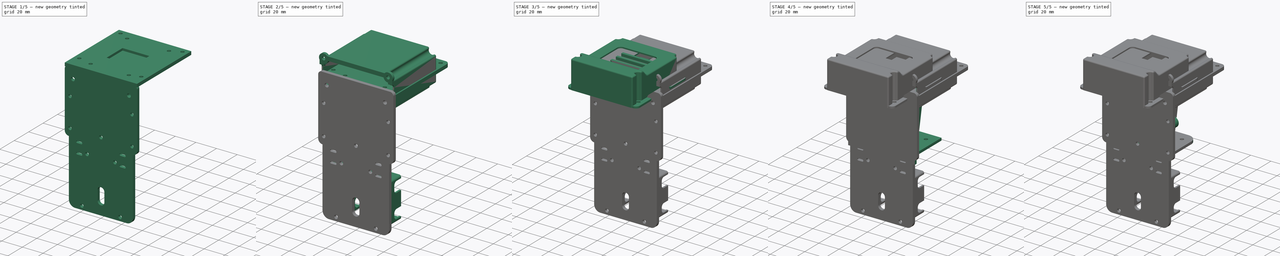
[diagram: build sequence overview — one tinted view per stage of 5, left to right]
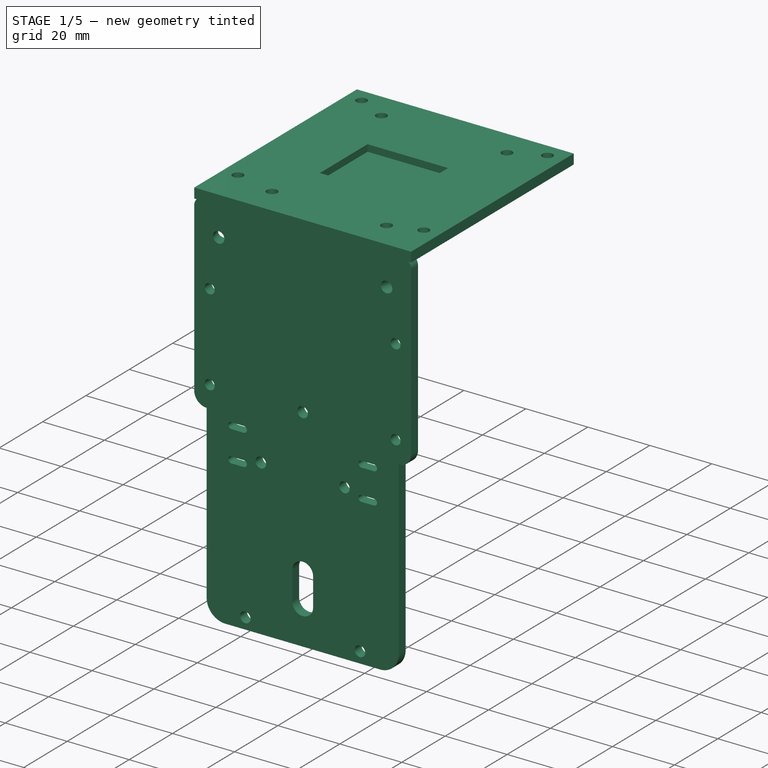
[diagram: stage 1 of 5 — iso view after this stage's code; geometry added in this stage tinted green]
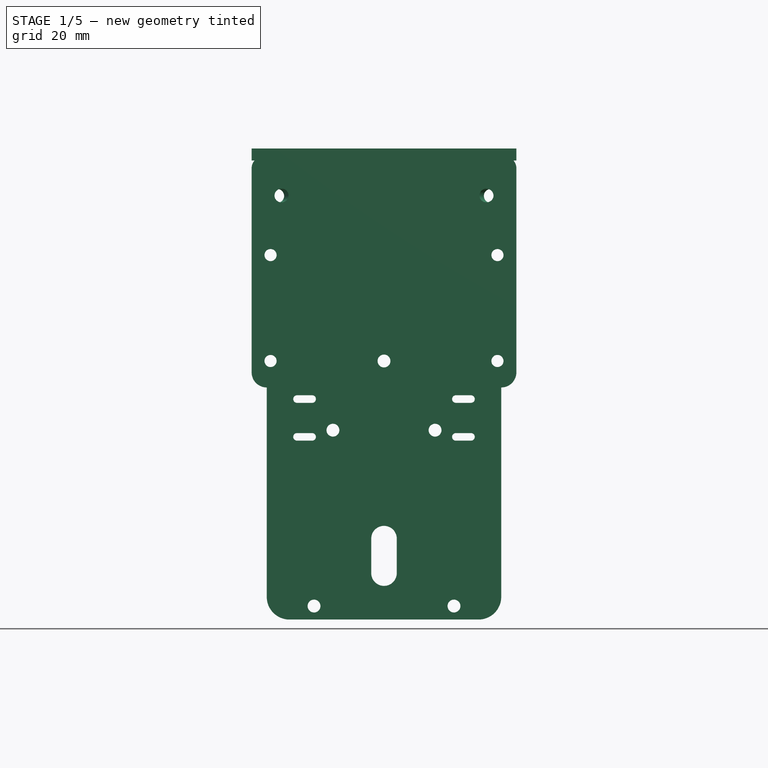
[diagram: stage 1 of 5 — front view after this stage's code; geometry added in this stage tinted green]
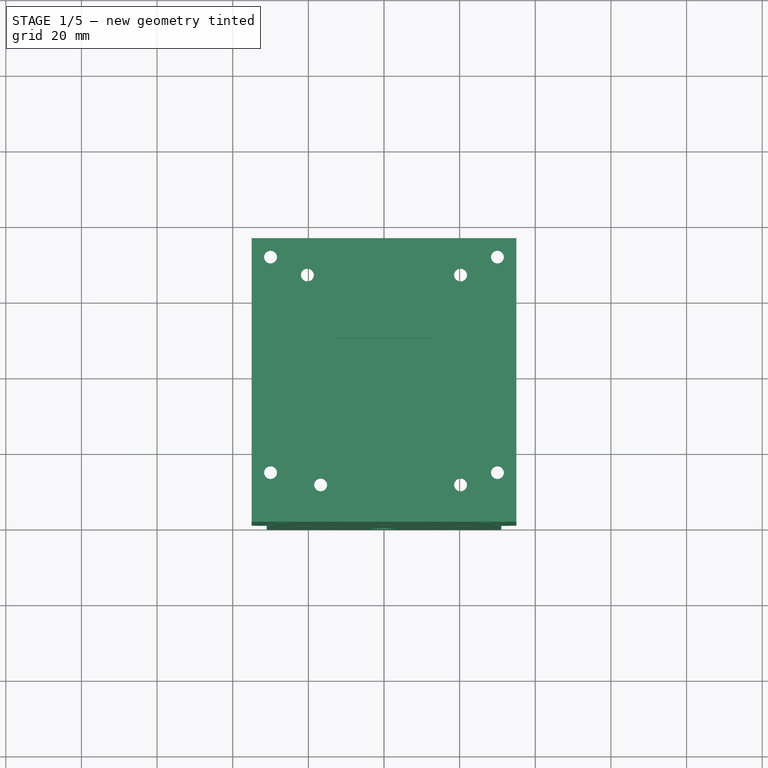
[diagram: stage 1 of 5 — top view after this stage's code; geometry added in this stage tinted green]
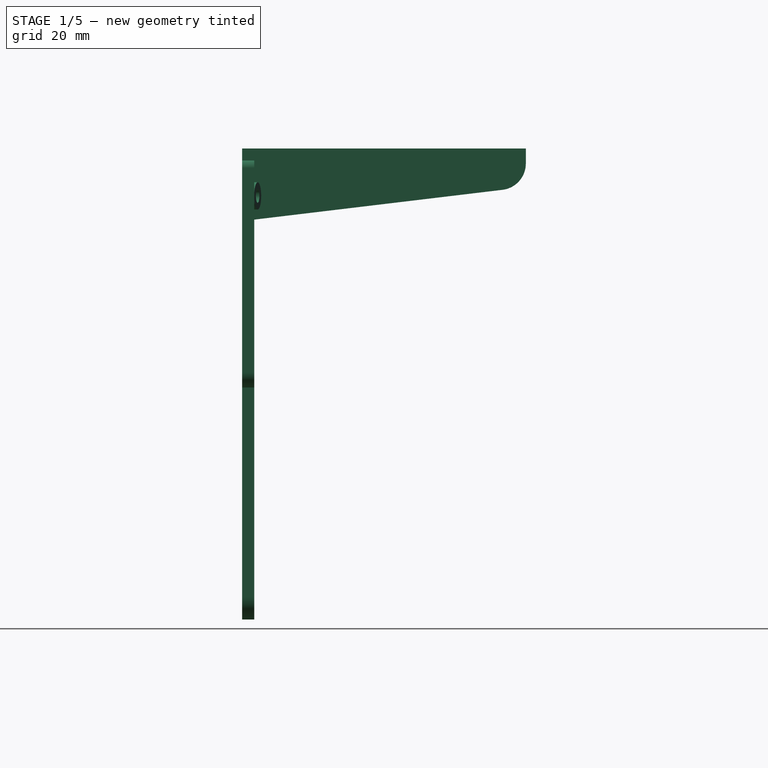
[diagram: stage 1 of 5 — right view after this stage's code; geometry added in this stage tinted green]
FCSTD DOCUMENT  (FreeCAD 0.19R24276 (Git))
Label: Fixation-pixhawk
License: All rights reserved
LicenseURL: http://en.wikipedia.org/wiki/All_rights_reserved
objects: Sketcher::SketchObject×62, PartDesign::Pocket×32, PartDesign::Pad×29, PartDesign::Fillet×17, PartDesign::Body×14, PartDesign::Mirrored×11, Part::Fuse×7, PartDesign::Chamfer×4, Part::FeaturePython×3, App::Part×3, PartDesign::Thickness×3, Part::Feature×2, Part::Mirroring×2, Spreadsheet::Sheet×2, PartDesign::LinearPattern×2
note: 273 computed .brp shape members not serialized (recipe doc carries the construction recipe); baked Part::Feature solids carry a one-line shape summary decoded from their .brp

FEATURE [PartDesign::Body] Body001  label="rondelle"
  Group = -> [Sketch009,Pad003,Sketch010,Pocket006]
  Origin = -> Origin001
  Placement = pos=(-27.5,0,10) rot=(0,0,1;0.261799rad)
  Tip = -> Pocket006
FEATURE [Sketcher::SketchObject] Sketch012
  AttachmentOffset = pos=(0,0,0) rot=(0,1,0;0.261799rad)
  FullyConstrained = true
  MapMode = 5
  Placement = pos=(0,0,0) rot=(0.983106,0.129428,0.129428;1.58783rad)
  Support = -> [XZ_Plane002]
  sketch-geometry (2):
    g0: Circle CenterX=0 CenterY=0 CenterZ=0 NormalX=0 NormalY=0 NormalZ=1 AngleXU=0 Radius=1.8
    g1: Circle CenterX=0 CenterY=0 CenterZ=0 NormalX=0 NormalY=0 NormalZ=1 AngleXU=0 Radius=3.6
  constraints (4):
    c: Coincident(g0,g-1)
    c: Coincident(g1,g0)
    c: Diameter(g0) = 3.6
    c: Diameter(g1) = 7.2
FEATURE [PartDesign::Pad] Pad004
  Direction = (1,1,1)
  Length = 3
  Length2 = 100
  Placement = pos=(0,0,0) rot=(1,0,0;1.5708rad)
  Profile = -> Sketch012
  Refine = true
  Reversed = true
  Type = 0
FEATURE [PartDesign::Body] Body002  label="petite_rondelle"
  Group = -> [Sketch012,Pad004]
  Origin = -> Origin002
  Placement = pos=(-27.375,1.2,-9.35) rot=(0,0,1;0rad)
  Tip = -> Pad004
FEATURE [Part::FeaturePython] Clone  label="petite_rondelle001"  # Draft clone (typed FeaturePython)
  AttacherType = Attacher::AttachEngine3D
  Fuse = false
  Objects = -> [Body002]
  Placement = pos=(-27.375,1.8,-9.35) rot=(0,0,1;0rad)
  Scale = (1,1,1)
FEATURE [Part::Mirroring] Part__Mirroring  label="petite_rondelle001 (Mirror #1)"
  Base = (0,0,0)
  Normal = (1,0,0)
  Placement = pos=(0,-0.6,0) rot=(0,0,1;0rad)
  Source = -> Clone
FEATURE [App::Part] Part001  label="Support-ESC"
  Group = -> [Part__Feature001,Body004,Body003,Clone001,Part__Mirroring001,Fusion001,Fusion002]
  Origin = -> Origin004
FEATURE [Spreadsheet::Sheet] Spreadsheet001  label="data1"
  cells = A2=Platine pixhawk; A3=Largeur; B3=70; D3=Hauteur pixhawk + spacer; E3==24.65 + 4; A4=Longueur; B4=75; D4=côté pixhawk; E4=38.3; A5=Jeu caisse pixhawk; B5=4; D5=Epaisseur coque protec; E5=1.27; A6=Main platine; A7=epaisseur pad; B7=3.2; A8=Largeur; B8=70; B11=Largeur; C11=Longueur; D11=Epaisseur; A12=TBS fpv; B12=26; C12=55; D12=6; A13=Telem; B13=21; C13=45; D13=8; A14=BEC; B14=16; C14=50; D14=10; A15=Rail connecteur; B15=7; C15=50; D15=15
FEATURE [Sketcher::SketchObject] Sketch030
  FullyConstrained = true
  MapMode = 5
  Support = -> [XY_Plane009]
  expr: Constraints[8] = <<data1>>.B3
  expr: Constraints[10] = <<data1>>.B4
  sketch-geometry (4):
    g0: LineSegment StartX=-35 StartY=0 StartZ=0 EndX=35 EndY=0 EndZ=0
    g1: LineSegment StartX=35 StartY=0 StartZ=0 EndX=35 EndY=75 EndZ=0
    g2: LineSegment StartX=35 StartY=75 StartZ=0 EndX=-35 EndY=75 EndZ=0
    g3: LineSegment StartX=-35 StartY=75 StartZ=0 EndX=-35 EndY=0 EndZ=0
  constraints (11):
    c: Coincident(g0,g1)
    c: Coincident(g1,g2)
    c: Coincident(g2,g3)
    c: Coincident(g3,g0)
    c: Horizontal(g0)
    c: Vertical(g1)
    c: Vertical(g3)
    c: PointOnObject(g0,g-1)
    c: DistanceX(g0,g0) = 70
    c: Symmetric(g2,g1,g-2)
    c: DistanceY(g3,g3) = 75
FEATURE [PartDesign::Pad] Pad013
  Direction = (1,1,1)
  Length = 3.2
  Length2 = 100
  Profile = -> Sketch030
  Refine = true
  Type = 0
  expr: Length = <<data1>>.B7
FEATURE [Sketcher::SketchObject] Sketch031
  FullyConstrained = true
  MapMode = 5
  Support = -> [XY_Plane009]
  expr: Constraints[20] = 55.5 / 2 - 22 / 2
  expr: Constraints[23] = <<data1>>.B4 / 2
  sketch-geometry (13):
    g0: Circle CenterX=-20.25 CenterY=65.25 CenterZ=0 NormalX=0 NormalY=0 NormalZ=1 AngleXU=0 Radius=1.7
    g1: Circle CenterX=20.25 CenterY=65.25 CenterZ=0 NormalX=0 NormalY=0 NormalZ=1 AngleXU=0 Radius=1.7
    g2: Circle CenterX=-16.75 CenterY=9.75 CenterZ=0 NormalX=0 NormalY=0 NormalZ=1 AngleXU=0 Radius=1.7
    g3: Circle CenterX=20.25 CenterY=9.75 CenterZ=0 NormalX=0 NormalY=0 NormalZ=1 AngleXU=0 Radius=1.7
    g4: LineSegment StartX=-13 StartY=48.5 StartZ=0 EndX=13 EndY=48.5 EndZ=0
    g5: LineSegment StartX=13 StartY=48.5 StartZ=0 EndX=13 EndY=26.5 EndZ=0
    g6: LineSegment StartX=13 StartY=26.5 StartZ=0 EndX=-13 EndY=26.5 EndZ=0
    g7: LineSegment StartX=-13 StartY=26.5 StartZ=0 EndX=-13 EndY=48.5 EndZ=0
    g8: GeomPoint X=-13 Y=37.5 Z=0
    g9: Circle CenterX=-30 CenterY=70 CenterZ=0 NormalX=0 NormalY=0 NormalZ=1 AngleXU=0 Radius=1.7
    g10: Circle CenterX=30 CenterY=70 CenterZ=0 NormalX=0 NormalY=0 NormalZ=1 AngleXU=0 Radius=1.7
    g11: Circle CenterX=-30 CenterY=13 CenterZ=0 NormalX=0 NormalY=0 NormalZ=1 AngleXU=0 Radius=1.7
    g12: Circle CenterX=30 CenterY=13 CenterZ=0 NormalX=0 NormalY=0 NormalZ=1 AngleXU=0 Radius=1.7
  constraints (34):
    c: Symmetric(g0,g1,g-2)
    c: Equal(g0,g2)
    c: Equal(g2,g3)
    c: Equal(g3,g1)
    c: Diameter(g0) = 3.4
    c: DistanceY(g2,g0) = 55.5
    c: DistanceX(g2,g3) = 37
    c: DistanceX(g0,g1) = 40.5
    c: DistanceY(g3,g2) = 0
    c: DistanceX(g3,g1) = 0
    c: Coincident(g4,g5)
    c: Coincident(g5,g6)
    c: Coincident(g6,g7)
    c: Coincident(g7,g4)
    c: Horizontal(g6)
    c: Vertical(g5)
    c: Vertical(g7)
    c: DistanceX(g4,g4) = 26
    c: DistanceY(g5,g5) = 22
    c: Symmetric(g4,g4,g-2)
    c: DistanceY(g2,g6) = 16.75
    c: PointOnObject(g8,g7)
    c: DistanceY(g6,g8) = 11
    c: DistanceY(g8) = 37.5
    c: Equal(g9,g11)
    c: Equal(g11,g12)
    c: Equal(g12,g10)
    c: Diameter(g11) = 3.4
    c: Symmetric(g9,g10,g-2)
    c: Symmetric(g11,g12,g-2)
    c: DistanceY(g11) = 13
    c: DistanceX(g11) = -30
    c: DistanceX(g9) = -30
    c: DistanceY(g9) = 70
FEATURE [Sketcher::SketchObject] Sketch032
  AttachmentOffset = pos=(0,0,9.8) rot=(0,0,1;0rad)
  FullyConstrained = false
  MapMode = 5
  Placement = pos=(9.8,-2.2e-15,2.2e-15) rot=(0.57735,0.57735,0.57735;2.0944rad)
  Support = -> [YZ_Plane009]
  expr: Constraints[0] = <<data1>>.B4
  sketch-geometry (5):
    g0: GeomPoint X=75 Y=-7 Z=0
    g1: LineSegment StartX=0 StartY=0 StartZ=0 EndX=75 EndY=0 EndZ=0
    g2: LineSegment StartX=0 StartY=0 StartZ=0 EndX=0 EndY=-16 EndZ=0
    g3: LineSegment StartX=0 StartY=-16 StartZ=0 EndX=75 EndY=-7 EndZ=0
    g4: LineSegment StartX=75 StartY=0 StartZ=0 EndX=75 EndY=-7 EndZ=0
  constraints (10):
    c: DistanceX(g0) = 75
    c: PointOnObject(g2,g-2)
    c: Coincident(g3,g2)
    c: DistanceY(g2,g2) = 16
    c: Tangent(g1,g-1) = -1.5708
    c: Coincident(g4,g1)
    c: Vertical(g4)
    c: Coincident(g3,g4)
    c: Coincident(g0,g3)
    c: DistanceY(g4,g4) = 7
FEATURE [PartDesign::Pocket] Pocket020
  BaseFeature = -> Pad013
  Length = 1
  Length2 = 100
  Profile = -> Sketch031
  Refine = true
  Reversed = true
  Type = 4
FEATURE [PartDesign::Body] Body008  label="telem-rx"
  Group = -> [Sketch050,Pad022]
  Origin = -> Origin012
  Placement = pos=(-22,0,-38) rot=(0,1,0;1.5708rad)
  Tip = -> Pad022
FEATURE [Sketcher::SketchObject] Sketch052
  AttachmentOffset = pos=(0,-53,0) rot=(0,0,1;0rad)
  FullyConstrained = true
  MapMode = 5
  Placement = pos=(0,1.18e-14,-53) rot=(1,0,0;1.5708rad)
  Support = -> [XZ_Plane013]
  sketch-geometry (1):
    g0: Circle CenterX=0 CenterY=0 CenterZ=0 NormalX=0 NormalY=0 NormalZ=1 AngleXU=0 Radius=1.7
  constraints (2):
    c: Coincident(g0,g-1)
    c: Diameter(g0) = 3.4
FEATURE [Sketcher::SketchObject] Sketch062
  FullyConstrained = true
  MapMode = 5
  Support = -> [XY_Plane013]
  expr: Constraints[8] = <<data1>>.B8
  expr: Constraints[9] = <<data1>>.B7
  sketch-geometry (4):
    g0: LineSegment StartX=-35 StartY=0 StartZ=0 EndX=35 EndY=0 EndZ=0
    g1: LineSegment StartX=35 StartY=0 StartZ=0 EndX=35 EndY=3.2 EndZ=0
    g2: LineSegment StartX=35 StartY=3.2 StartZ=0 EndX=-35 EndY=3.2 EndZ=0
    g3: LineSegment StartX=-35 StartY=3.2 StartZ=0 EndX=-35 EndY=0 EndZ=0
  constraints (11):
    c: Coincident(g0,g1)
    c: Coincident(g1,g2)
    c: Coincident(g2,g3)
    c: Coincident(g3,g0)
    c: Horizontal(g2)
    c: Vertical(g1)
    c: Vertical(g3)
    c: PointOnObject(g0,g-1)
    c: DistanceX(g2,g2) = 70
    c: DistanceY(g1,g1) = 3.2
    c: Symmetric(g0,g0,g-2)
FEATURE [PartDesign::Pad] Pad027
  Direction = (1,1,1)
  Length = 1
  Length2 = 60
  Profile = -> Sketch062
  Refine = true
  Reversed = true
  Type = 4
FEATURE [Sketcher::SketchObject] Sketch065
  AttachmentOffset = pos=(-25.1,-9,8) rot=(0,0.707107,0.707107;0.349066rad)
  FullyConstrained = true
  MapMode = 5
  Placement = pos=(-25.1,-8,-9) rot=(0.970288,0,0.241955;1.60095rad)
  Support = -> [XZ_Plane013]
  sketch-geometry (1):
    g0: Circle CenterX=0 CenterY=0 CenterZ=0 NormalX=0 NormalY=0 NormalZ=1 AngleXU=0 Radius=1.8
  constraints (2):
    c: Diameter(g0) = 3.6
    c: Coincident(g0,g-1)
FEATURE [PartDesign::Pocket] Pocket022
  BaseFeature = -> Pad027
  Length = 5
  Length2 = 100
  Profile = -> Sketch065
  Refine = true
  Type = 1
FEATURE [PartDesign::Mirrored] Mirrored011
  BaseFeature = -> Pocket022
  MirrorPlane = -> YZ_Plane013
  Originals = -> [Pocket022]
  Refine = true
FEATURE [PartDesign::Pocket] Pocket023
  BaseFeature = -> Mirrored011
  Length = 5
  Length2 = 100
  Profile = -> Sketch052
  Refine = true
  Type = 1
FEATURE [PartDesign::Body] Body010  label="BEC"
  Group = -> [Sketch066,Pad028]
  Origin = -> Origin014
  Placement = pos=(-25,15,-48) rot=(0,0,-1;1.5708rad)
  Tip = -> Pad028
FEATURE [Sketcher::SketchObject] Sketch067
  FullyConstrained = true
  MapMode = 5
  Support = -> [XY_Plane009]
  expr: Constraints[12] = <<data1>>.B4 / 2
  sketch-geometry (5):
    g0: LineSegment StartX=-15 StartY=50.5 StartZ=0 EndX=15 EndY=50.5 EndZ=0
    g1: LineSegment StartX=15 StartY=50.5 StartZ=0 EndX=15 EndY=24.5 EndZ=0
    g2: LineSegment StartX=15 StartY=24.5 StartZ=0 EndX=-15 EndY=24.5 EndZ=0
    g3: LineSegment StartX=-15 StartY=24.5 StartZ=0 EndX=-15 EndY=50.5 EndZ=0
    g4: GeomPoint X=-15 Y=37.5 Z=0
  constraints (13):
    c: Coincident(g0,g1)
    c: Coincident(g1,g2)
    c: Coincident(g2,g3)
    c: Coincident(g3,g0)
    c: Horizontal(g2)
    c: Vertical(g1)
    c: Vertical(g3)
    c: DistanceX(g0,g0) = 30
    c: DistanceY(g1,g1) = 26
    c: Symmetric(g0,g0,g-2)
    c: PointOnObject(g4,g3)
    c: DistanceY(g2,g4) = 13
    c: DistanceY(g4) = 37.5
FEATURE [Sketcher::SketchObject] Sketch068
  FullyConstrained = true
  MapMode = 5
  Placement = pos=(0,0,0) rot=(1,0,0;1.5708rad)
  Support = -> [XZ_Plane013]
  sketch-geometry (4):
    g0: Circle CenterX=-30 CenterY=-25 CenterZ=0 NormalX=0 NormalY=0 NormalZ=1 AngleXU=0 Radius=1.6
    g1: Circle CenterX=30 CenterY=-25 CenterZ=0 NormalX=0 NormalY=0 NormalZ=1 AngleXU=0 Radius=1.6
    g2: Circle CenterX=-30 CenterY=-53 CenterZ=0 NormalX=0 NormalY=0 NormalZ=1 AngleXU=0 Radius=1.6
    g3: Circle CenterX=30 CenterY=-53 CenterZ=0 NormalX=0 NormalY=0 NormalZ=1 AngleXU=0 Radius=1.6
  constraints (10):
    c: Equal(g2,g0)
    c: Equal(g0,g1)
    c: Equal(g1,g3)
    c: Symmetric(g0,g1,g-2)
    c: Symmetric(g2,g3,g-2)
    c: DistanceX(g0) = -30
    c: Diameter(g0) = 3.2
    c: DistanceX(g2,g0) = 0
    c: DistanceY(g2) = -53
    c: DistanceY(g2,g0) = 28
FEATURE [PartDesign::Pocket] Pocket024
  BaseFeature = -> Pocket023
  Length = 5
  Length2 = 100
  Profile = -> Sketch068
  Refine = true
  Type = 0
FEATURE [PartDesign::Fillet] Fillet010
  Base = -> Pocket024 [Edge15,Edge13]
  BaseFeature = -> Pocket024
  Radius = 4
  Refine = true
  SupportTransform = false
FEATURE [PartDesign::Pad] Pad029
  BaseFeature = -> Pocket020
  Direction = (1,1,1)
  Length = 3.5
  Length2 = 100
  Profile = -> Sketch032
  Refine = true
  Type = 0
FEATURE [PartDesign::Mirrored] Mirrored012
  BaseFeature = -> Pad029
  MirrorPlane = -> YZ_Plane009
  Originals = -> [Pad029]
  Refine = true
FEATURE [PartDesign::Pad] Pad030
  BaseFeature = -> Mirrored012
  Direction = (1,1,1)
  Length = 1
  Length2 = 1.6
  Profile = -> Sketch067
  Refine = true
  Type = 4
FEATURE [Part::Fuse] Fusion003  label="Fusion005"
  Base = -> Body002
  Refine = true
  Tool = -> Part__Mirroring
FEATURE [PartDesign::Fillet] Fillet013
  Base = -> Pad030 [Edge8,Edge12]
  BaseFeature = -> Pad030
  Radius = 7
  Refine = true
  SupportTransform = false
FEATURE [PartDesign::Body] Body013  label="Boite-Radio"
  Group = -> [Sketch080,Sketch081,Pad036,Sketch082,Pocket030,Thickness001,Sketch083,Pad037,Sketch084,Pad038,Pocket031,Sketch086,Pocket032,Sketch087,Pocket033,Sketch088,Pad039,Sketch089,Pocket034,Chamfer004]
  Origin = -> Origin017
  Placement = pos=(0,3,-37.5) rot=(0,0,1;0rad)
  Tip = -> Chamfer004
  expr: .Placement.Base.z = -15.5 - 22
FEATURE [Sketcher::SketchObject] Sketch094
  FullyConstrained = false
  MapMode = 5
  Placement = pos=(0,0,0) rot=(1,0,0;1.5708rad)
  Support = -> [XZ_Plane013]
  sketch-geometry (8):
    g0: Circle CenterX=-13.5 CenterY=-71.2972 CenterZ=0 NormalX=0 NormalY=0 NormalZ=1 AngleXU=0 Radius=1.7
    g1: Circle CenterX=-18.5 CenterY=-117.797 CenterZ=0 NormalX=0 NormalY=0 NormalZ=1 AngleXU=0 Radius=1.7
    g2: Circle CenterX=18.5 CenterY=-117.797 CenterZ=0 NormalX=0 NormalY=0 NormalZ=1 AngleXU=0 Radius=1.7
    g3: Circle CenterX=13.5 CenterY=-71.2972 CenterZ=0 NormalX=0 NormalY=0 NormalZ=1 AngleXU=0 Radius=1.7
    g4: ArcOfCircle CenterX=0 CenterY=-99.9666 CenterZ=0 NormalX=0 NormalY=0 NormalZ=1 AngleXU=0 Radius=3.37465 StartAngle=-1.8e-15 EndAngle=3.14159
    g5: ArcOfCircle CenterX=-2e-16 CenterY=-109.091 CenterZ=0 NormalX=0 NormalY=0 NormalZ=1 AngleXU=0 Radius=3.37465 StartAngle=3.14159 EndAngle=6.28319
    g6: LineSegment StartX=-3.37465 StartY=-99.9666 StartZ=0 EndX=-3.37465 EndY=-109.091 EndZ=0
    g7: LineSegment StartX=3.37465 StartY=-99.9666 StartZ=0 EndX=3.37465 EndY=-109.091 EndZ=0
  constraints (16):
    c: Diameter(g0) = 3.4
    c: Diameter(g1) = 3.4
    c: DistanceX(g1) = -18.5
    c: Equal(g2,g1)
    c: Symmetric(g2,g1,g-2)
    c: DistanceX(g0) = -13.5
    c: DistanceY(g1,g0) = 46.5
    c: Equal(g3,g0)
    c: Symmetric(g0,g3,g-2)
    c: Tangent(g4,g7) = 1.5708
    c: Tangent(g4,g6) = -1.5708
    c: Tangent(g6,g5) = -1.5708
    c: Tangent(g7,g5) = 1.5708
    c: Vertical(g6)
    c: Equal(g4,g5)
    c: PointOnObject(g4,g-2)
FEATURE [PartDesign::Fillet] Fillet012
  Base = -> Fillet010 [Edge19,Edge16]
  BaseFeature = -> Fillet010
  Radius = 3
  Refine = true
  SupportTransform = false
FEATURE [Sketcher::SketchObject] Sketch073
  ExternalGeometry = -> [Fillet012]
  FullyConstrained = false
  MapMode = 5
  Placement = pos=(0,0,0) rot=(1,0,0;1.5708rad)
  Support = -> [XZ_Plane013]
  sketch-geometry (12):
    g0: LineSegment StartX=-31 StartY=-60 StartZ=0 EndX=0 EndY=-60 EndZ=0
    g1: LineSegment StartX=0 StartY=-60 StartZ=0 EndX=0 EndY=-121.367 EndZ=0
    g2: LineSegment StartX=0 StartY=-121.367 StartZ=0 EndX=-31 EndY=-121.367 EndZ=0
    g3: LineSegment StartX=-31 StartY=-121.367 StartZ=0 EndX=-31 EndY=-60 EndZ=0
    g4: ArcOfCircle CenterX=-23 CenterY=-63.0636 CenterZ=0 NormalX=0 NormalY=0 NormalZ=1 AngleXU=0 Radius=1 StartAngle=1.5708 EndAngle=4.71239
    g5: ArcOfCircle CenterX=-19 CenterY=-63.0636 CenterZ=0 NormalX=0 NormalY=0 NormalZ=1 AngleXU=0 Radius=1 StartAngle=4.71239 EndAngle=7.85398
    g6: LineSegment StartX=-23 StartY=-64.0636 StartZ=0 EndX=-19 EndY=-64.0636 EndZ=0
    g7: LineSegment StartX=-23 StartY=-62.0636 StartZ=0 EndX=-19 EndY=-62.0636 EndZ=0
    g8: ArcOfCircle CenterX=-23 CenterY=-73.0636 CenterZ=0 NormalX=0 NormalY=0 NormalZ=1 AngleXU=0 Radius=1 StartAngle=1.5708 EndAngle=4.71239
    g9: ArcOfCircle CenterX=-19 CenterY=-73.0636 CenterZ=0 NormalX=0 NormalY=0 NormalZ=1 AngleXU=0 Radius=1 StartAngle=4.71239 EndAngle=7.85398
    g10: LineSegment StartX=-23 StartY=-74.0636 StartZ=0 EndX=-19 EndY=-74.0636 EndZ=0
    g11: LineSegment StartX=-23 StartY=-72.0636 StartZ=0 EndX=-19 EndY=-72.0636 EndZ=0
  constraints (28):
    c: Coincident(g0,g1)
    c: Coincident(g1,g2)
    c: Coincident(g2,g3)
    c: Horizontal(g2)
    c: Vertical(g3)
    c: Tangent(g4,g7) = 1.5708
    c: Tangent(g4,g6) = -1.5708
    c: Tangent(g6,g5) = -1.5708
    c: Tangent(g7,g5) = 1.5708
    c: Horizontal(g6)
    c: Equal(g4,g5)
    c: Tangent(g-2,g1)
    c: Perpendicular(g-2,g0)
    c: DistanceX(g4,g5) = 4
    c: DistanceY(g4,g4) = 2
    c: Tangent(g8,g11) = 1.5708
    c: Tangent(g8,g10) = -1.5708
    c: Tangent(g10,g9) = -1.5708
    c: Tangent(g11,g9) = 1.5708
    c: Horizontal(g10)
    c: Equal(g8,g9)
    c: Equal(g11,g6)
    c: Equal(g8,g4)
    c: DistanceX(g4,g8) = 0
    c: DistanceY(g9,g5) = 8
    c: DistanceX(g0,g4) = 8
    c: Coincident(g0,g3)
    c: Coincident(g0,g-3)
FEATURE [PartDesign::Pad] Pad032
  BaseFeature = -> Fillet012
  Direction = (1,1,1)
  Length = 3.2
  Length2 = 100
  Profile = -> Sketch073
  Refine = true
  Reversed = true
  Type = 0
  expr: Length = <<data1>>.B7
FEATURE [PartDesign::Mirrored] Mirrored013
  BaseFeature = -> Pad032
  MirrorPlane = -> Sketch073 [V_Axis]
  Originals = -> [Pad032]
  Refine = true
FEATURE [PartDesign::Pocket] Pocket037
  BaseFeature = -> Mirrored013
  Length = 5
  Length2 = 100
  Profile = -> Sketch094
  Refine = true
  Type = 1
FEATURE [PartDesign::Fillet] Fillet021
  Base = -> Pocket037 [Edge91,Edge92]
  BaseFeature = -> Pocket037
  Radius = 6
  Refine = true
  SupportTransform = false
FEATURE [PartDesign::Body] Body009  label="platine"
  Group = -> [Sketch062,Pad027,Sketch065,Sketch052,Pocket022,Mirrored011,Pocket023,Sketch068,Pocket024,Fillet010,Fillet012,Sketch073,Pad032,Mirrored013,Sketch094,Pocket037,Fillet021]
  Origin = -> Origin013
  Tip = -> Fillet021
FEATURE [Part::Fuse] Fusion
  Base = -> Body009
  Refine = true
  Tool = -> Fusion003
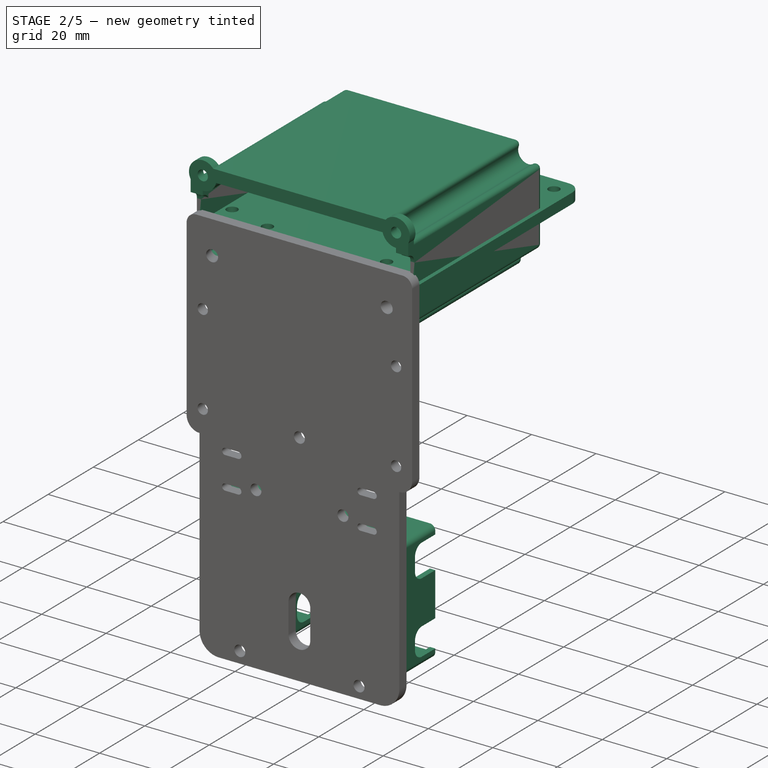
[diagram: stage 2 of 5 — iso view after this stage's code; geometry added in this stage tinted green]
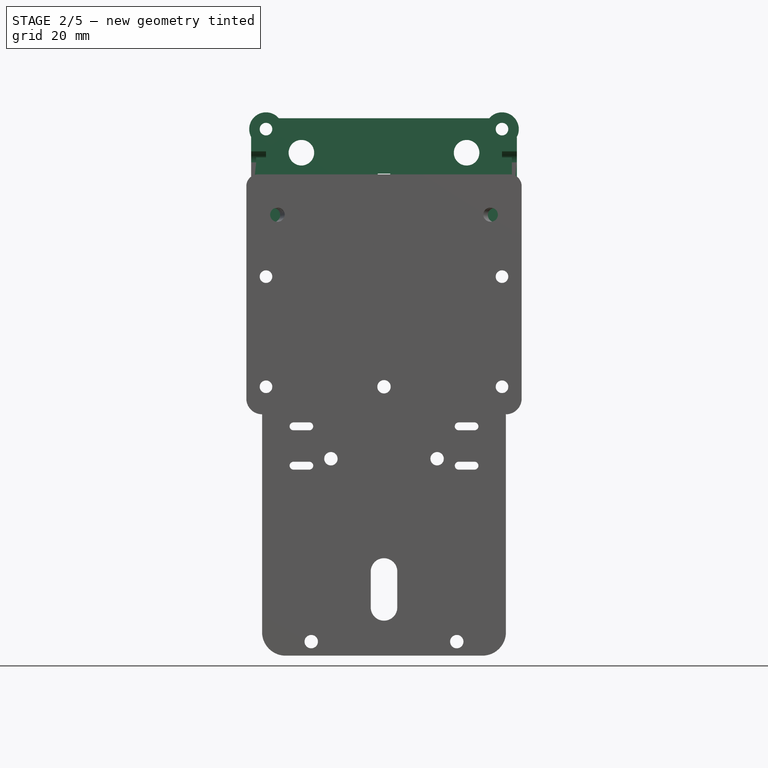
[diagram: stage 2 of 5 — front view after this stage's code; geometry added in this stage tinted green]
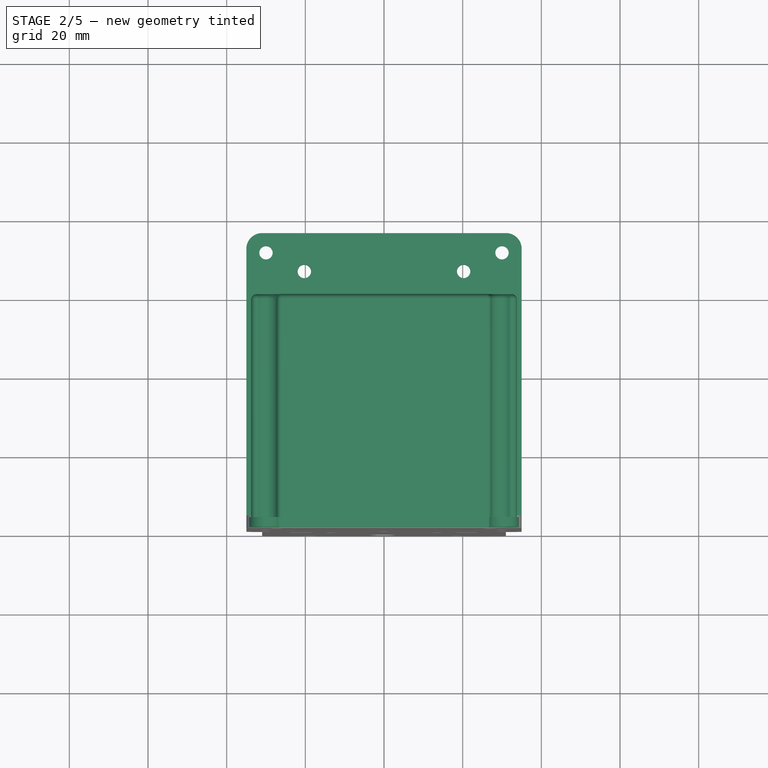
[diagram: stage 2 of 5 — top view after this stage's code; geometry added in this stage tinted green]
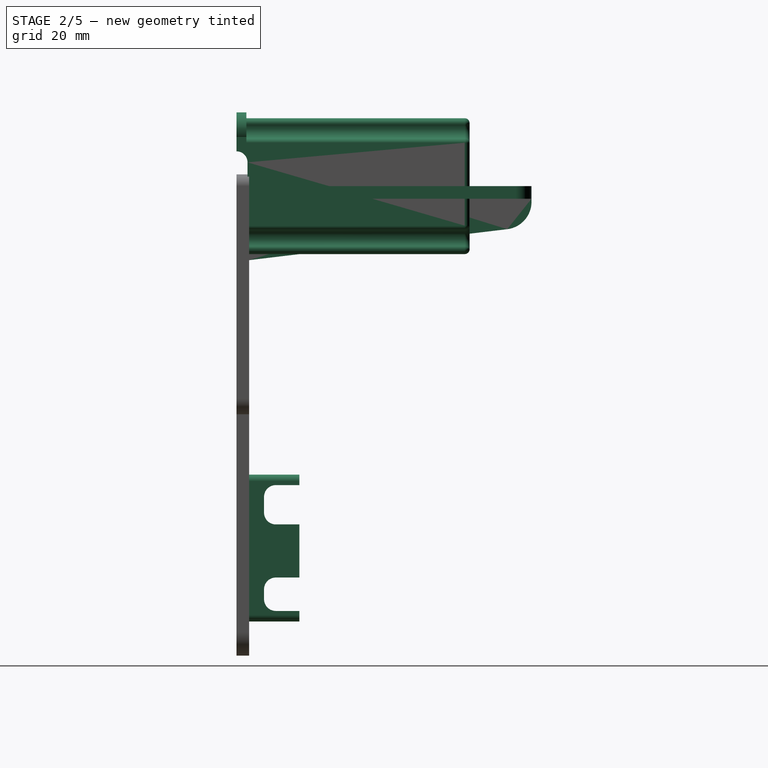
[diagram: stage 2 of 5 — right view after this stage's code; geometry added in this stage tinted green]
FEATURE [PartDesign::Chamfer] Chamfer
  Angle = 45
  Base = -> Fillet013 [Edge96,Edge86,Edge88,Edge97,Edge110,Edge114]
  BaseFeature = -> Fillet013
  ChamferType = 0
  FlipDirection = false
  Refine = true
  Size = 1.5
  Size2 = 1
  SupportTransform = false
FEATURE [PartDesign::Chamfer] Chamfer001
  Angle = 45
  Base = -> Chamfer [Edge104,Edge102,Edge103,Edge101]
  BaseFeature = -> Chamfer
  ChamferType = 0
  FlipDirection = false
  Refine = true
  Size = 2
  Size2 = 1
  SupportTransform = false
FEATURE [PartDesign::Fillet] Fillet014
  Base = -> Chamfer001 [Edge38,Edge36]
  BaseFeature = -> Chamfer001
  Radius = 4
  Refine = true
  SupportTransform = false
FEATURE [PartDesign::Body] Body012  label="Boite-Pixhawk"
  Group = -> [Sketch070,Sketch071,Sketch072,Sketch074,Pad033,Sketch075,Pocket025,Sketch076,Fillet018,Pocket026,Thickness,Pocket027,Sketch077,Pad034,Sketch078,Pad035,Pocket028,Sketch079,Pocket029,Fillet019]
  Origin = -> Origin016
  Placement = pos=(0,37.5,0) rot=(0,0,1;0rad)
  Tip = -> Fillet019
  expr: .Placement.Base.y = <<data1>>.B4 / 2
FEATURE [Sketcher::SketchObject] Sketch080
  FullyConstrained = true
  MapMode = 5
  Placement = pos=(0,0,0) rot=(1,0,0;1.5708rad)
  Support = -> [XZ_Plane017]
  sketch-geometry (5):
    g0: Circle CenterX=-30 CenterY=12.5 CenterZ=0 NormalX=0 NormalY=0 NormalZ=1 AngleXU=0 Radius=1.6
    g1: Circle CenterX=30 CenterY=12.5 CenterZ=0 NormalX=0 NormalY=0 NormalZ=1 AngleXU=0 Radius=1.6
    g2: Circle CenterX=-30 CenterY=-15.5 CenterZ=0 NormalX=0 NormalY=0 NormalZ=1 AngleXU=0 Radius=1.6
    g3: Circle CenterX=30 CenterY=-15.5 CenterZ=0 NormalX=0 NormalY=0 NormalZ=1 AngleXU=0 Radius=1.6
    g4: Circle CenterX=0 CenterY=-15.5 CenterZ=0 NormalX=0 NormalY=0 NormalZ=1 AngleXU=0 Radius=1.6
  constraints (13):
    c: Equal(g2,g0)
    c: Equal(g0,g1)
    c: Equal(g1,g3)
    c: Symmetric(g0,g1,g-2)
    c: Symmetric(g2,g3,g-2)
    c: DistanceX(g0) = -30
    c: Diameter(g0) = 3.2
    c: PointOnObject(g4,g-2)
    c: Equal(g4,g0)
    c: DistanceY(g4,g2) = 0
    c: DistanceY(g2) = -15.5
    c: DistanceX(g0,g2) = 0
    c: DistanceY(g0) = 12.5
FEATURE [Sketcher::SketchObject] Sketch081
  FullyConstrained = true
  MapMode = 5
  Placement = pos=(0,0,0) rot=(1,0,0;1.5708rad)
  Support = -> [XZ_Plane017]
  sketch-geometry (4):
    g0: LineSegment StartX=-32.5 StartY=-18 StartZ=0 EndX=32.5 EndY=-18 EndZ=0
    g1: LineSegment StartX=32.5 StartY=-18 StartZ=0 EndX=32.5 EndY=14 EndZ=0
    g2: LineSegment StartX=32.5 StartY=14 StartZ=0 EndX=-32.5 EndY=14 EndZ=0
    g3: LineSegment StartX=-32.5 StartY=14 StartZ=0 EndX=-32.5 EndY=-18 EndZ=0
  constraints (11):
    c: Coincident(g0,g1)
    c: Coincident(g1,g2)
    c: Coincident(g2,g3)
    c: Coincident(g3,g0)
    c: Horizontal(g0)
    c: Vertical(g1)
    c: Symmetric(g2,g1,g-2)
    c: DistanceX(g2,g2) = 65
    c: DistanceY(g2) = 14
    c: Perpendicular(g0,g3)
    c: DistanceY(g0) = -18
FEATURE [PartDesign::Pad] Pad036
  Direction = (1,1,1)
  Length = 58
  Length2 = 100
  Placement = pos=(0,0,0) rot=(1,0,0;1.5708rad)
  Profile = -> Sketch081
  Refine = true
  Reversed = true
  Type = 0
FEATURE [Sketcher::SketchObject] Sketch082
  FullyConstrained = true
  MapMode = 5
  Placement = pos=(0,0,0) rot=(1,0,0;1.5708rad)
  Support = -> [XZ_Plane017]
  expr: Constraints[6] = 6 + 2 * <<data1>>.E5
  sketch-geometry (5):
    g0: Circle CenterX=-30 CenterY=12.5 CenterZ=0 NormalX=0 NormalY=0 NormalZ=1 AngleXU=0 Radius=4.27
    g1: Circle CenterX=30 CenterY=12.5 CenterZ=0 NormalX=0 NormalY=0 NormalZ=1 AngleXU=0 Radius=4.27
    g2: Circle CenterX=-30 CenterY=-15.5 CenterZ=0 NormalX=0 NormalY=0 NormalZ=1 AngleXU=0 Radius=4.27
    g3: Circle CenterX=30 CenterY=-15.5 CenterZ=0 NormalX=0 NormalY=0 NormalZ=1 AngleXU=0 Radius=4.27
    g4: Circle CenterX=0 CenterY=-15.5 CenterZ=0 NormalX=0 NormalY=0 NormalZ=1 AngleXU=0 Radius=4.27
  constraints (13):
    c: Equal(g2,g0)
    c: Equal(g0,g1)
    c: Equal(g1,g3)
    c: Symmetric(g0,g1,g-2)
    c: Symmetric(g2,g3,g-2)
    c: DistanceX(g0) = -30
    c: Diameter(g0) = 8.54
    c: PointOnObject(g4,g-2)
    c: Equal(g4,g0)
    c: DistanceY(g4,g2) = 0
    c: DistanceY(g2) = -15.5
    c: DistanceX(g0,g2) = 0
    c: DistanceY(g-1,g0) = 12.5
FEATURE [PartDesign::Pocket] Pocket030
  BaseFeature = -> Pad036
  Length = 5
  Length2 = 100
  Placement = pos=(0,0,0) rot=(1,0,0;1.5708rad)
  Profile = -> Sketch082
  Refine = true
  Type = 1
FEATURE [PartDesign::Thickness] Thickness001
  Base = -> Pocket030 [Face2]
  BaseFeature = -> Pocket030
  Intersection = false
  Join = 0
  Mode = 0
  Refine = true
  SupportTransform = false
  Value = 1.27
  expr: Value = <<data1>>.E5
FEATURE [Sketcher::SketchObject] Sketch083
  FullyConstrained = false
  MapMode = 5
  Placement = pos=(0,0,0) rot=(1,0,0;1.5708rad)
  Support = -> [XZ_Plane017]
  expr: Constraints[19] = -18 - <<data1>>.E5
  expr: Constraints[10] = 14 - 2.5
  expr: Constraints[20] = 14 + <<data1>>.E5
  expr: Constraints[16] = 65 + 2 * <<data1>>.E5
  expr: Constraints[11] = -18 + 2.5
  expr: Constraints[7] = 65 - 2 * 2.5
  sketch-geometry (13):
    g0: LineSegment StartX=-30 StartY=-15.5 StartZ=0 EndX=30 EndY=-15.5 EndZ=0
    g1: LineSegment StartX=30 StartY=-15.5 StartZ=0 EndX=30 EndY=11.5 EndZ=0
    g2: LineSegment StartX=30 StartY=11.5 StartZ=0 EndX=-30 EndY=11.5 EndZ=0
    g3: LineSegment StartX=-30 StartY=11.5 StartZ=0 EndX=-30 EndY=-15.5 EndZ=0
    g4: LineSegment StartX=-28.77 StartY=15.27 StartZ=0 EndX=28.77 EndY=15.27 EndZ=0
    g5: LineSegment StartX=33.77 StartY=10.27 StartZ=0 EndX=33.77 EndY=-14.27 EndZ=0
    g6: LineSegment StartX=28.77 StartY=-19.27 StartZ=0 EndX=-28.77 EndY=-19.27 EndZ=0
    g7: LineSegment StartX=-33.77 StartY=-14.27 StartZ=0 EndX=-33.77 EndY=10.27 EndZ=0
    g8: ArcOfCircle CenterX=28.77 CenterY=-14.27 CenterZ=0 NormalX=0 NormalY=0 NormalZ=1 AngleXU=0 Radius=5 StartAngle=4.71239 EndAngle=6.28319
    g9: GeomPoint X=-33.77 Y=-10.0718 Z=0
    g10: ArcOfCircle CenterX=28.77 CenterY=10.27 CenterZ=0 NormalX=0 NormalY=0 NormalZ=1 AngleXU=0 Radius=5 StartAngle=0 EndAngle=1.5708
    g11: ArcOfCircle CenterX=-28.77 CenterY=10.27 CenterZ=0 NormalX=0 NormalY=0 NormalZ=1 AngleXU=0 Radius=5 StartAngle=1.5708 EndAngle=3.14159
    g12: ArcOfCircle CenterX=-28.77 CenterY=-14.27 CenterZ=0 NormalX=0 NormalY=0 NormalZ=1 AngleXU=0 Radius=5 StartAngle=3.14159 EndAngle=4.71239
  constraints (31):
    c: Coincident(g0,g1)
    c: Coincident(g1,g2)
    c: Coincident(g2,g3)
    c: Coincident(g3,g0)
    c: Horizontal(g0)
    c: Vertical(g1)
    c: Symmetric(g2,g1,g-2)
    c: DistanceX(g2,g2) = 60
    c: Horizontal(g6)
    c: Vertical(g5)
    c: DistanceY(g2) = 11.5
    c: DistanceY(g0) = -15.5
    c: Perpendicular(g0,g3)
    c: Tangent(g5,g8) = 1.5708
    c: Tangent(g6,g8) = 1.5708
    c: PointOnObject(g9,g7)
    c: DistanceX(g9,g5) = 67.54
    c: Tangent(g4,g10) = 1.5708
    c: Tangent(g5,g10) = 1.5708
    c: DistanceY(g6) = -19.27
    c: DistanceY(g4) = 15.27
    c: Tangent(g4,g11) = 1.5708
    c: Tangent(g7,g11) = 1.5708
    c: Tangent(g6,g12) = 1.5708
    c: Tangent(g7,g12) = 1.5708
    c: Equal(g12,g11)
    c: Equal(g11,g10)
    c: Equal(g10,g8)
    c: Parallel(g7,g-2)
    c: Symmetric(g7,g5,g-2)
    c: Radius(g11) = 5
FEATURE [PartDesign::Pad] Pad037
  BaseFeature = -> Thickness001
  Direction = (1,1,1)
  Length = 2.5
  Length2 = 100
  Profile = -> Sketch083
  Refine = true
  Reversed = true
  Type = 0
FEATURE [Sketcher::SketchObject] Sketch084
  FullyConstrained = true
  MapMode = 5
  Placement = pos=(0,0,0) rot=(1,0,0;1.5708rad)
  Support = -> [XZ_Plane017]
  expr: Constraints[6] = 6 + 2 * <<data1>>.E5
  sketch-geometry (5):
    g0: Circle CenterX=-30 CenterY=12.5 CenterZ=0 NormalX=0 NormalY=0 NormalZ=1 AngleXU=0 Radius=4.27
    g1: Circle CenterX=30 CenterY=12.5 CenterZ=0 NormalX=0 NormalY=0 NormalZ=1 AngleXU=0 Radius=4.27
    g2: Circle CenterX=-30 CenterY=-15.5 CenterZ=0 NormalX=0 NormalY=0 NormalZ=1 AngleXU=0 Radius=4.27
    g3: Circle CenterX=30 CenterY=-15.5 CenterZ=0 NormalX=0 NormalY=0 NormalZ=1 AngleXU=0 Radius=4.27
    g4: Circle CenterX=0 CenterY=-15.5 CenterZ=0 NormalX=0 NormalY=0 NormalZ=1 AngleXU=0 Radius=4.27
  constraints (13):
    c: Equal(g2,g0)
    c: Equal(g0,g1)
    c: Equal(g1,g3)
    c: Symmetric(g0,g1,g-2)
    c: Symmetric(g2,g3,g-2)
    c: DistanceX(g0) = -30
    c: Diameter(g0) = 8.54
    c: PointOnObject(g4,g-2)
    c: Equal(g4,g0)
    c: DistanceY(g4,g2) = 0
    c: DistanceY(g2) = -15.5
    c: DistanceX(g0,g2) = 0
    c: DistanceY(g0) = 12.5
FEATURE [PartDesign::Pad] Pad038
  BaseFeature = -> Pad037
  Direction = (1,1,1)
  Length = 2.5
  Length2 = 100
  Profile = -> Sketch084
  Refine = true
  Reversed = true
  Type = 0
FEATURE [PartDesign::Pocket] Pocket031
  BaseFeature = -> Pad038
  Length = 5
  Length2 = 100
  Profile = -> Sketch080
  Refine = true
  Type = 1
FEATURE [Sketcher::SketchObject] Sketch086
  FullyConstrained = false
  MapMode = 5
  Placement = pos=(0,0,0) rot=(0.57735,0.57735,0.57735;2.0944rad)
  Support = -> [YZ_Plane017]
  sketch-geometry (4):
    g0: ArcOfCircle CenterX=0 CenterY=4.05212 CenterZ=0 NormalX=0 NormalY=0 NormalZ=1 AngleXU=0 Radius=2.8 StartAngle=2e-16 EndAngle=3.14159
    g1: ArcOfCircle CenterX=0 CenterY=-7.94788 CenterZ=0 NormalX=0 NormalY=0 NormalZ=1 AngleXU=0 Radius=2.8 StartAngle=3.14159 EndAngle=6.28319
    g2: LineSegment StartX=-2.8 StartY=4.05212 StartZ=0 EndX=-2.8 EndY=-7.94788 EndZ=0
    g3: LineSegment StartX=2.8 StartY=4.05212 StartZ=0 EndX=2.8 EndY=-7.94788 EndZ=0
  constraints (9):
    c: Tangent(g0,g3) = 1.5708
    c: Tangent(g0,g2) = -1.5708
    c: Tangent(g2,g1) = -1.5708
    c: Tangent(g3,g1) = 1.5708
    c: Vertical(g2)
    c: PointOnObject(g0,g-2)
    c: DistanceX(g0,g0) = 2.8
    c: DistanceY(g1,g0) = 12
    c: PointOnObject(g1,g-2)
FEATURE [PartDesign::Pocket] Pocket032
  BaseFeature = -> Pocket031
  Length = 5
  Length2 = 100
  Midplane = true
  Profile = -> Sketch086
  Refine = true
  Reversed = true
  Type = 1
FEATURE [Sketcher::SketchObject] Sketch087
  FullyConstrained = false
  MapMode = 5
  Placement = pos=(0,0,0) rot=(1,0,0;1.5708rad)
  Support = -> [XZ_Plane017]
  sketch-geometry (6):
    g0: Circle CenterX=-21 CenterY=6.5 CenterZ=0 NormalX=0 NormalY=0 NormalZ=1 AngleXU=0 Radius=3.25
    g1: Circle CenterX=21 CenterY=6.5 CenterZ=0 NormalX=0 NormalY=0 NormalZ=1 AngleXU=0 Radius=3.25
    g2: LineSegment StartX=-1.6 StartY=1.17364 StartZ=0 EndX=1.6 EndY=1.17364 EndZ=0
    g3: LineSegment StartX=1.6 StartY=1.17364 StartZ=0 EndX=1.6 EndY=-1.22636 EndZ=0
    g4: LineSegment StartX=1.6 StartY=-1.22636 StartZ=0 EndX=-1.6 EndY=-1.22636 EndZ=0
    g5: LineSegment StartX=-1.6 StartY=-1.22636 StartZ=0 EndX=-1.6 EndY=1.17364 EndZ=0
  constraints (15):
    c: Diameter(g0) = 6.5
    c: DistanceY(g0) = 6.5
    c: DistanceX(g0) = -21
    c: Symmetric(g1,g0,g-2)
    c: Equal(g1,g0)
    c: Coincident(g2,g3)
    c: Coincident(g3,g4)
    c: Coincident(g4,g5)
    c: Coincident(g5,g2)
    c: Horizontal(g4)
    c: Vertical(g3)
    c: Vertical(g5)
    c: DistanceY(g5,g5) = 2.4
    c: DistanceX(g2,g2) = 3.2
    c: Symmetric(g2,g2,g-2)
FEATURE [PartDesign::Pocket] Pocket033
  BaseFeature = -> Pocket032
  Length = 5
  Length2 = 100
  Profile = -> Sketch087
  Refine = true
  Type = 1
FEATURE [Sketcher::SketchObject] Sketch090
  FullyConstrained = true
  MapMode = 5
  Placement = pos=(0,0,0) rot=(1,0,0;1.5708rad)
  Support = -> [XZ_Plane018]
  sketch-geometry (4):
    g0: LineSegment StartX=-11 StartY=0 StartZ=0 EndX=11 EndY=0 EndZ=0
    g1: LineSegment StartX=11 StartY=0 StartZ=0 EndX=11 EndY=34 EndZ=0
    g2: LineSegment StartX=11 StartY=34 StartZ=0 EndX=-11 EndY=34 EndZ=0
    g3: LineSegment StartX=-11 StartY=34 StartZ=0 EndX=-11 EndY=0 EndZ=0
  constraints (11):
    c: Coincident(g0,g1)
    c: Coincident(g1,g2)
    c: Coincident(g2,g3)
    c: Coincident(g3,g0)
    c: Horizontal(g0)
    c: Vertical(g1)
    c: Vertical(g3)
    c: PointOnObject(g0,g-1)
    c: DistanceY(g3,g3) = 34
    c: DistanceX(g2,g2) = 22
    c: Symmetric(g2,g1,g-2)
FEATURE [PartDesign::Pad] Pad040
  Direction = (1,1,1)
  Length = 13
  Length2 = 100
  Placement = pos=(0,0,0) rot=(1,0,0;1.5708rad)
  Profile = -> Sketch090
  Refine = true
  Type = 0
FEATURE [PartDesign::Thickness] Thickness002
  Base = -> Pad040 [Face5]
  BaseFeature = -> Pad040
  Intersection = false
  Join = 0
  Mode = 0
  Refine = true
  SupportTransform = false
  Value = 1.67
FEATURE [Sketcher::SketchObject] Sketch091
  FullyConstrained = false
  MapMode = 5
  Placement = pos=(0,0,0) rot=(1,0,0;1.5708rad)
  Support = -> [XZ_Plane018]
  sketch-geometry (4):
    g0: LineSegment StartX=-17.9563 StartY=11 StartZ=0 EndX=20.3649 EndY=11 EndZ=0
    g1: LineSegment StartX=20.3649 StartY=11 StartZ=0 EndX=20.3649 EndY=1 EndZ=0
    g2: LineSegment StartX=20.3649 StartY=1 StartZ=0 EndX=-17.9563 EndY=1 EndZ=0
    g3: LineSegment StartX=-17.9563 StartY=1 StartZ=0 EndX=-17.9563 EndY=11 EndZ=0
  constraints (10):
    c: Coincident(g0,g1)
    c: Coincident(g1,g2)
    c: Coincident(g2,g3)
    c: Coincident(g3,g0)
    c: Horizontal(g0)
    c: Horizontal(g2)
    c: Vertical(g1)
    c: Vertical(g3)
    c: DistanceY(g3,g3) = 10
    c: DistanceY(g2) = 1
FEATURE [PartDesign::Pocket] Pocket035
  BaseFeature = -> Thickness002
  Length = 9
  Length2 = 100
  Profile = -> Sketch091
  Refine = true
  Reversed = true
  Type = 0
FEATURE [Sketcher::SketchObject] Sketch092
  FullyConstrained = false
  MapMode = 5
  Placement = pos=(0,0,0) rot=(1,0,0;1.5708rad)
  Support = -> [XZ_Plane018]
  sketch-geometry (8):
    g0: LineSegment StartX=15.2523 StartY=20.9983 StartZ=0 EndX=8.05438 EndY=20.9983 EndZ=0
    g1: LineSegment StartX=8.05438 StartY=20.9983 StartZ=0 EndX=8.05438 EndY=32.9983 EndZ=0
    g2: LineSegment StartX=8.05438 StartY=32.9983 StartZ=0 EndX=15.2523 EndY=32.9983 EndZ=0
    g3: LineSegment StartX=15.2523 StartY=32.9983 StartZ=0 EndX=15.2523 EndY=20.9983 EndZ=0
    g4: LineSegment StartX=-14.8213 StartY=32.9983 StartZ=0 EndX=-10.7007 EndY=32.9983 EndZ=0
    g5: LineSegment StartX=-10.7007 StartY=32.9983 StartZ=0 EndX=-10.7007 EndY=24.4983 EndZ=0
    g6: LineSegment StartX=-10.7007 StartY=24.4983 StartZ=0 EndX=-14.8213 EndY=24.4983 EndZ=0
    g7: LineSegment StartX=-14.8213 StartY=24.4983 StartZ=0 EndX=-14.8213 EndY=32.9983 EndZ=0
  constraints (19):
    c: Coincident(g0,g1)
    c: Coincident(g1,g2)
    c: Coincident(g2,g3)
    c: Coincident(g3,g0)
    c: Horizontal(g0)
    c: Horizontal(g2)
    c: Vertical(g1)
    c: Vertical(g3)
    c: DistanceY(g3,g3) = 12
    c: Coincident(g4,g5)
    c: Coincident(g5,g6)
    c: Coincident(g6,g7)
    c: Coincident(g7,g4)
    c: Horizontal(g4)
    c: Horizontal(g6)
    c: Vertical(g5)
    c: Vertical(g7)
    c: DistanceY(g7,g7) = 8.5
    c: DistanceY(g4,g2) = 0
FEATURE [PartDesign::Pocket] Pocket036
  BaseFeature = -> Pocket035
  Length = 9
  Length2 = 100
  Profile = -> Sketch092
  Refine = true
  Reversed = true
  Type = 0
FEATURE [PartDesign::Fillet] Fillet020
  Base = -> Pocket036 [Edge46,Edge43,Edge54,Edge51,Edge56,Edge59,Edge64,Edge67]
  BaseFeature = -> Pocket036
  Radius = 3
  Refine = true
  SupportTransform = false
FEATURE [Sketcher::SketchObject] Sketch093
  FullyConstrained = false
  MapMode = 5
  Placement = pos=(0,-13,2.9e-15) rot=(0,0.707107,0.707107;3.14159rad)
  Support = -> [Fillet020]
  sketch-geometry (1):
    g0: Circle CenterX=0 CenterY=16.1062 CenterZ=0 NormalX=0 NormalY=0 NormalZ=1 AngleXU=0 Radius=9.79347
  constraints (1):
    c: PointOnObject(g0,g-2)
FEATURE [PartDesign::Pad] Pad041
  BaseFeature = -> Fillet020
  Direction = (1,1,1)
  Length = 2.6
  Length2 = 100
  Profile = -> Sketch093
  Refine = true
  Type = 0
FEATURE [PartDesign::Chamfer] Chamfer003
  Angle = 45
  Base = -> Pad041 [Edge97]
  BaseFeature = -> Pad041
  ChamferType = 0
  FlipDirection = false
  Refine = true
  Size = 1
  Size2 = 1
  SupportTransform = false
FEATURE [Part::FeaturePython] Clone002  label="Support-Mauch001"  # Draft clone (typed FeaturePython)
  AttacherType = Attacher::AttachEngine3D
  Fuse = false
  Objects = -> [Body014]
  Placement = pos=(-18.3,16,-77) rot=(0,1,0;3.14159rad)
  Scale = (1,1,1)
FEATURE [Part::Fuse] Fusion004  label="Fusion006"
  Base = -> Body005
  Refine = true
  Tool = -> Fusion
FEATURE [Part::Fuse] Fusion005  label="Fusion007"
  Base = -> Body014
  Refine = true
  Tool = -> Fusion004
FEATURE [Part::Fuse] Fusion006  label="Platine-ready"
  Base = -> Clone002
  Refine = true
  Tool = -> Fusion005
FEATURE [App::Part] Part002  label="NEW-support-px"
  Group = -> [Spreadsheet001,Body007,Body008,Body010,Body002,Clone,Part__Mirroring,Body005,Body009,Fusion003,Body012,Body013,Body014,Clone002,Fusion,Fusion004,Fusion005,Fusion006]
  Origin = -> Origin008
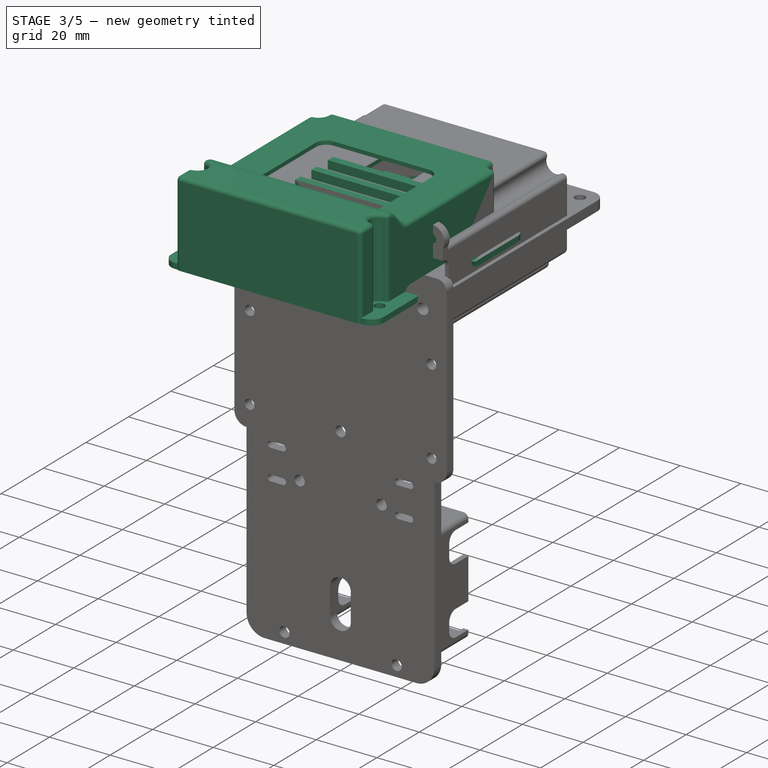
[diagram: stage 3 of 5 — iso view after this stage's code; geometry added in this stage tinted green]
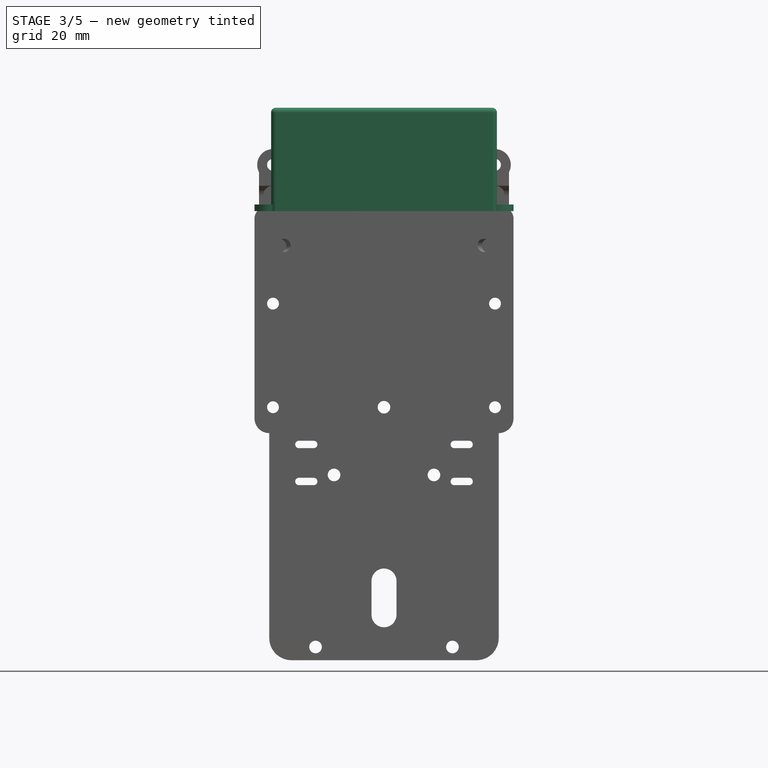
[diagram: stage 3 of 5 — front view after this stage's code; geometry added in this stage tinted green]
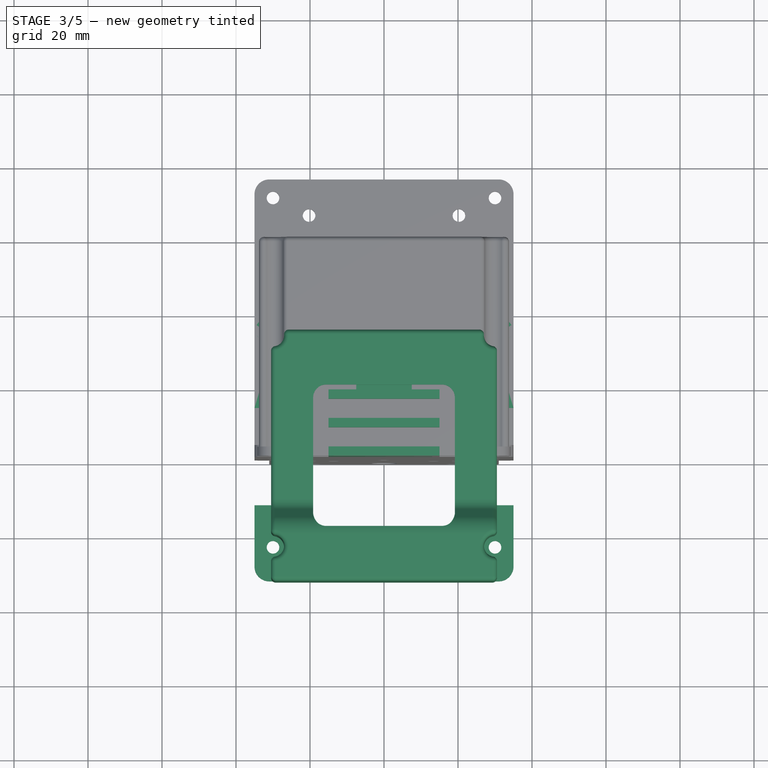
[diagram: stage 3 of 5 — top view after this stage's code; geometry added in this stage tinted green]
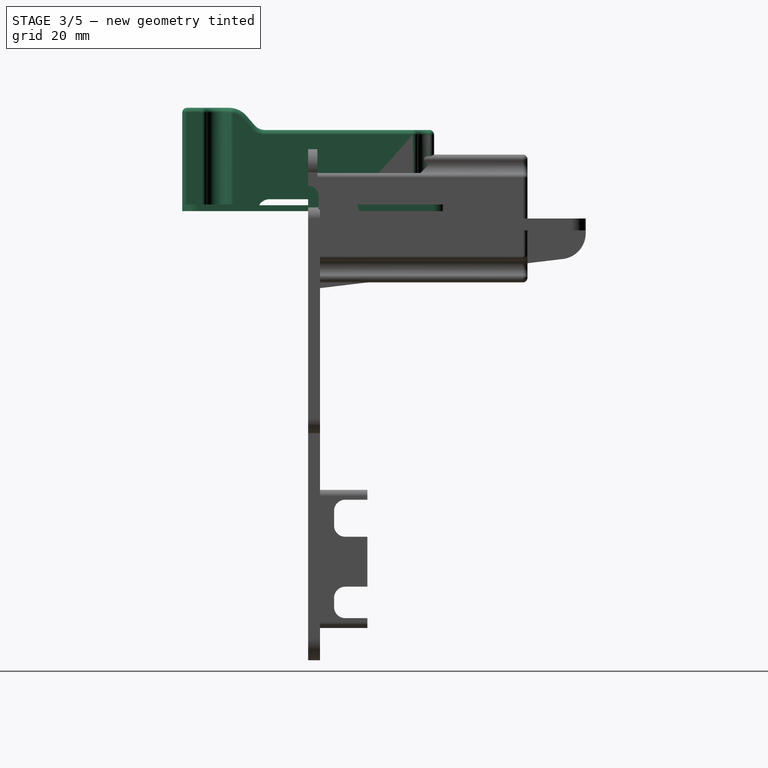
[diagram: stage 3 of 5 — right view after this stage's code; geometry added in this stage tinted green]
FEATURE [PartDesign::Body] Body
  Group = -> [Sketch,Pad,Sketch001,Sketch002,Sketch003,Sketch004,Sketch007,Pad005,Mirrored,Sketch013,Pocket,Mirrored001,Sketch014,Pad006,Pad007,Sketch015,Pocket007,Sketch016,Pad008,Pocket008,Sketch017,Sketch018,Pocket009,Sketch019,Pocket010,Mirrored002,LinearPattern,Pocket011,Mirrored003,Pocket012,Pocket013,Sketch020,Pocket014,Mirrored004,Fillet,Fillet001,Fillet002,Fillet003,Mirrored005,Sketch021,Pocket015,+1 more]
  Origin = -> Origin
  Tip = -> Mirrored006
FEATURE [App::Part] Part  label="OLD-support-px"
  Group = -> [Body,Body001,Part__Feature,Spreadsheet]
  Origin = -> Origin003
FEATURE [Part::Feature] Part__Feature001  label="Fusion003"
  Placement = pos=(-2.3e-14,-102,78) rot=(0,0,1;1.5708rad)
  shape: bbox 49.69 x 9.636 x 17.72 mm, 28 faces, 2 solids (baked)
FEATURE [Sketcher::SketchObject] Sketch024
  FullyConstrained = true
  MapMode = 5
  Support = -> [XY_Plane006]
  expr: Constraints[10] = <<data>>.B3 * 3 + 2 * 5.2
  sketch-geometry (4):
    g0: LineSegment StartX=-15 StartY=0 StartZ=0 EndX=15 EndY=0 EndZ=0
    g1: LineSegment StartX=15 StartY=0 StartZ=0 EndX=15 EndY=17.9 EndZ=0
    g2: LineSegment StartX=15 StartY=17.9 StartZ=0 EndX=-15 EndY=17.9 EndZ=0
    g3: LineSegment StartX=-15 StartY=17.9 StartZ=0 EndX=-15 EndY=0 EndZ=0
  constraints (11):
    c: Coincident(g0,g1)
    c: Coincident(g1,g2)
    c: Coincident(g2,g3)
    c: Coincident(g3,g0)
    c: Horizontal(g2)
    c: Vertical(g1)
    c: Vertical(g3)
    c: PointOnObject(g0,g-1)
    c: DistanceX(g2,g2) = 30
    c: Symmetric(g0,g0,g-2)
    c: DistanceY(g1,g1) = 17.9
FEATURE [PartDesign::Pad] Pad010
  Direction = (1,1,1)
  Length = 2.5
  Length2 = 100
  Profile = -> Sketch024
  Refine = true
  Reversed = true
  Type = 0
  expr: Length = <<data>>.B3
FEATURE [Sketcher::SketchObject] Sketch025
  FullyConstrained = true
  MapMode = 5
  Support = -> [XY_Plane006]
  expr: Constraints[8] = <<data>>.B3
  sketch-geometry (4):
    g0: LineSegment StartX=-15 StartY=0 StartZ=0 EndX=15 EndY=0 EndZ=0
    g1: LineSegment StartX=15 StartY=0 StartZ=0 EndX=15 EndY=2.5 EndZ=0
    g2: LineSegment StartX=15 StartY=2.5 StartZ=0 EndX=-15 EndY=2.5 EndZ=0
    g3: LineSegment StartX=-15 StartY=2.5 StartZ=0 EndX=-15 EndY=0 EndZ=0
  constraints (11):
    c: Coincident(g0,g1)
    c: Coincident(g1,g2)
    c: Coincident(g2,g3)
    c: Coincident(g3,g0)
    c: Horizontal(g0)
    c: Vertical(g1)
    c: Vertical(g3)
    c: PointOnObject(g0,g-1)
    c: DistanceY(g1,g1) = 2.5
    c: DistanceX(g2,g2) = 30
    c: Symmetric(g2,g1,g-2)
FEATURE [PartDesign::Pad] Pad011
  BaseFeature = -> Pad010
  Direction = (1,1,1)
  Length = 18
  Length2 = 100
  Profile = -> Sketch025
  Refine = true
  Type = 0
FEATURE [PartDesign::LinearPattern] LinearPattern001
  BaseFeature = -> Pad011
  Direction = -> Y_Axis006
  Length = 15.4
  Occurrences = 3
  Originals = -> [Pad011]
  Refine = true
  expr: Length = <<data>>.B3 * 2 + 2 * 5.2
FEATURE [Sketcher::SketchObject] Sketch049
  FullyConstrained = true
  MapMode = 5
  Support = -> [XY_Plane011]
  expr: Constraints[9] = <<data1>>.B12
  expr: Constraints[10] = <<data1>>.C12
  sketch-geometry (4):
    g0: LineSegment StartX=-13 StartY=0 StartZ=0 EndX=13 EndY=-1e-16 EndZ=0
    g1: LineSegment StartX=13 StartY=-1e-16 StartZ=0 EndX=13 EndY=55 EndZ=0
    g2: LineSegment StartX=13 StartY=55 StartZ=0 EndX=-13 EndY=55 EndZ=0
    g3: LineSegment StartX=-13 StartY=55 StartZ=0 EndX=-13 EndY=0 EndZ=0
  constraints (11):
    c: Coincident(g0,g1)
    c: Coincident(g1,g2)
    c: Coincident(g2,g3)
    c: Coincident(g3,g0)
    c: Horizontal(g2)
    c: Vertical(g1)
    c: Vertical(g3)
    c: PointOnObject(g0,g-1)
    c: Symmetric(g0,g0,g-2)
    c: DistanceX(g2,g2) = 26
    c: DistanceY(g3,g3) = 55
FEATURE [PartDesign::Pad] Pad021
  Direction = (1,1,1)
  Length = 6
  Length2 = 100
  Profile = -> Sketch049
  Refine = true
  Type = 0
  expr: Length = <<data1>>.D12
FEATURE [PartDesign::Body] Body007  label="FPV-tx"
  Group = -> [Sketch049,Pad021]
  Origin = -> Origin011
  Placement = pos=(11,0,-36) rot=(0,0,1;0rad)
  Tip = -> Pad021
FEATURE [Sketcher::SketchObject] Sketch050
  FullyConstrained = true
  MapMode = 5
  Support = -> [XY_Plane012]
  expr: Constraints[9] = <<data1>>.B13
  expr: Constraints[10] = <<data1>>.C13
  sketch-geometry (4):
    g0: LineSegment StartX=-10.5 StartY=0 StartZ=0 EndX=10.5 EndY=0 EndZ=0
    g1: LineSegment StartX=10.5 StartY=0 StartZ=0 EndX=10.5 EndY=45 EndZ=0
    g2: LineSegment StartX=10.5 StartY=45 StartZ=0 EndX=-10.5 EndY=45 EndZ=0
    g3: LineSegment StartX=-10.5 StartY=45 StartZ=0 EndX=-10.5 EndY=0 EndZ=0
  constraints (11):
    c: Coincident(g0,g1)
    c: Coincident(g1,g2)
    c: Coincident(g2,g3)
    c: Coincident(g3,g0)
    c: Horizontal(g0)
    c: Vertical(g1)
    c: Vertical(g3)
    c: PointOnObject(g0,g-1)
    c: Symmetric(g2,g1,g-2)
    c: DistanceX(g2,g2) = 21
    c: DistanceY(g3,g3) = 45
FEATURE [PartDesign::Pad] Pad022
  Direction = (1,1,1)
  Length = 8
  Length2 = 100
  Profile = -> Sketch050
  Refine = true
  Type = 0
  expr: Length = <<data1>>.D13
FEATURE [Sketcher::SketchObject] Sketch066
  FullyConstrained = true
  MapMode = 5
  Support = -> [XY_Plane014]
  expr: Constraints[9] = <<data1>>.B14
  expr: Constraints[10] = <<data1>>.C14
  sketch-geometry (4):
    g0: LineSegment StartX=-8 StartY=0 StartZ=0 EndX=8 EndY=0 EndZ=0
    g1: LineSegment StartX=8 StartY=0 StartZ=0 EndX=8 EndY=50 EndZ=0
    g2: LineSegment StartX=8 StartY=50 StartZ=0 EndX=-8 EndY=50 EndZ=0
    g3: LineSegment StartX=-8 StartY=50 StartZ=0 EndX=-8 EndY=0 EndZ=0
  constraints (11):
    c: Coincident(g0,g1)
    c: Coincident(g1,g2)
    c: Coincident(g2,g3)
    c: Coincident(g3,g0)
    c: Horizontal(g0)
    c: Vertical(g1)
    c: Vertical(g3)
    c: PointOnObject(g0,g-1)
    c: Symmetric(g2,g1,g-2)
    c: DistanceX(g2,g2) = 16
    c: DistanceY(g3,g3) = 50
FEATURE [PartDesign::Pad] Pad028
  Direction = (1,1,1)
  Length = 10
  Length2 = 100
  Profile = -> Sketch066
  Refine = true
  Type = 0
  expr: Length = <<data1>>.D14
FEATURE [PartDesign::Body] Body005  label="platine-pixhawk"
  Group = -> [Sketch030,Pad013,Sketch031,Sketch032,Pocket020,Sketch067,Pad029,Mirrored012,Pad030,Fillet013,Chamfer,Chamfer001,Fillet014]
  Origin = -> Origin009
  Placement = pos=(0,0,-5.2) rot=(0,0,1;0rad)
  Tip = -> Fillet014
FEATURE [Sketcher::SketchObject] Sketch069
  FullyConstrained = true
  MapMode = 5
  Support = -> [XY_Plane015]
  sketch-geometry (10):
    g0: LineSegment StartX=-19.2 StartY=19.2 StartZ=0 EndX=-19.2 EndY=-19.2 EndZ=0
    g1: LineSegment StartX=-19.2 StartY=-19.2 StartZ=0 EndX=19.2 EndY=-19.2 EndZ=0
    g2: LineSegment StartX=19.2 StartY=-19.2 StartZ=0 EndX=19.2 EndY=19.2 EndZ=0
    g3: LineSegment StartX=19.2 StartY=19.2 StartZ=0 EndX=-19.2 EndY=19.2 EndZ=0
    g4: Circle CenterX=0 CenterY=0 CenterZ=0 NormalX=0 NormalY=0 NormalZ=1 AngleXU=0 Radius=27.1529
    g5: LineSegment StartX=-25 StartY=25 StartZ=0 EndX=-25 EndY=-25 EndZ=0
    g6: LineSegment StartX=-25 StartY=-25 StartZ=0 EndX=25 EndY=-25 EndZ=0
    g7: LineSegment StartX=25 StartY=-25 StartZ=0 EndX=25 EndY=25 EndZ=0
    g8: LineSegment StartX=25 StartY=25 StartZ=0 EndX=-25 EndY=25 EndZ=0
    g9: Circle CenterX=0 CenterY=0 CenterZ=0 NormalX=0 NormalY=0 NormalZ=1 AngleXU=0 Radius=35.3553
  constraints (28):
    c: Coincident(g0,g1)
    c: Coincident(g1,g2)
    c: Coincident(g2,g3)
    c: Coincident(g3,g0)
    c: Equal(g0,g1)
    c: Equal(g0,g2)
    c: Equal(g0,g3)
    c: PointOnObject(g0,g4)
    c: PointOnObject(g1,g4)
    c: PointOnObject(g2,g4)
    c: PointOnObject(g3,g4)
    c: Coincident(g4,g-1)
    c: Coincident(g5,g6)
    c: Coincident(g6,g7)
    c: Coincident(g7,g8)
    c: Coincident(g8,g5)
    c: Equal(g5,g6)
    c: Equal(g5,g7)
    c: Equal(g5,g8)
    c: PointOnObject(g5,g9)
    c: PointOnObject(g6,g9)
    c: PointOnObject(g7,g9)
    c: PointOnObject(g8,g9)
    c: Coincident(g9,g-1)
    c: Parallel(g8,g-1)
    c: Parallel(g3,g-1)
    c: DistanceX(g3,g3) = 38.4
    c: DistanceX(g8,g8) = 50
FEATURE [PartDesign::Pad] Pad031
  Direction = (1,1,1)
  Length = 1.6
  Length2 = 100
  Profile = -> Sketch069
  Refine = true
  Type = 0
FEATURE [PartDesign::Fillet] Fillet015
  Base = -> Pad031 [Edge20,Edge17,Edge14,Edge13]
  BaseFeature = -> Pad031
  Radius = 4.5
  Refine = true
  SupportTransform = false
FEATURE [PartDesign::Body] Body011
  Group = -> [Sketch069,Pad031,Fillet015]
  Origin = -> Origin015
  Tip = -> Fillet015
FEATURE [Sketcher::SketchObject] Sketch070
  FullyConstrained = true
  MapMode = 5
  Support = -> [XY_Plane016]
  expr: Constraints[8] = 50.5
  expr: Constraints[9] = 57.5
  sketch-geometry (4):
    g0: LineSegment StartX=-25.25 StartY=28.75 StartZ=0 EndX=25.25 EndY=28.75 EndZ=0
    g1: LineSegment StartX=25.25 StartY=28.75 StartZ=0 EndX=25.25 EndY=-28.75 EndZ=0
    g2: LineSegment StartX=25.25 StartY=-28.75 StartZ=0 EndX=-25.25 EndY=-28.75 EndZ=0
    g3: LineSegment StartX=-25.25 StartY=-28.75 StartZ=0 EndX=-25.25 EndY=28.75 EndZ=0
  constraints (10):
    c: Coincident(g0,g1)
    c: Coincident(g1,g2)
    c: Coincident(g2,g3)
    c: Coincident(g3,g0)
    c: Horizontal(g2)
    c: Vertical(g1)
    c: Symmetric(g0,g0,g-2)
    c: Symmetric(g0,g2,g-1)
    c: DistanceX(g0,g0) = 50.5
    c: DistanceY(g3,g3) = 57.5
FEATURE [Sketcher::SketchObject] Sketch071
  FullyConstrained = true
  MapMode = 5
  Support = -> [XY_Plane016]
  expr: Constraints[14] = <<data1>>.E4
  expr: Constraints[15] = <<data1>>.E4
  sketch-geometry (8):
    g0: LineSegment StartX=-15.65 StartY=-19.15 StartZ=0 EndX=15.65 EndY=-19.15 EndZ=0
    g1: LineSegment StartX=19.15 StartY=-15.65 StartZ=0 EndX=19.15 EndY=15.65 EndZ=0
    g2: LineSegment StartX=15.65 StartY=19.15 StartZ=0 EndX=-15.65 EndY=19.15 EndZ=0
    g3: LineSegment StartX=-19.15 StartY=15.65 StartZ=0 EndX=-19.15 EndY=-15.65 EndZ=0
    g4: ArcOfCircle CenterX=-15.65 CenterY=15.65 CenterZ=0 NormalX=0 NormalY=0 NormalZ=1 AngleXU=0 Radius=3.5 StartAngle=1.5708 EndAngle=3.14159
    g5: ArcOfCircle CenterX=15.65 CenterY=15.65 CenterZ=0 NormalX=0 NormalY=0 NormalZ=1 AngleXU=0 Radius=3.5 StartAngle=0 EndAngle=1.5708
    g6: ArcOfCircle CenterX=15.65 CenterY=-15.65 CenterZ=0 NormalX=0 NormalY=0 NormalZ=1 AngleXU=0 Radius=3.5 StartAngle=4.71239 EndAngle=6.28319
    g7: ArcOfCircle CenterX=-15.65 CenterY=-15.65 CenterZ=0 NormalX=0 NormalY=0 NormalZ=1 AngleXU=0 Radius=3.5 StartAngle=3.14159 EndAngle=4.71239
  constraints (18):
    c: Horizontal(g0)
    c: Horizontal(g2)
    c: Vertical(g1)
    c: Vertical(g3)
    c: Tangent(g2,g4) = -1.5708
    c: Tangent(g3,g4) = -1.5708
    c: Tangent(g1,g5) = -1.5708
    c: Tangent(g2,g5) = -1.5708
    c: Tangent(g0,g6) = -1.5708
    c: Tangent(g1,g6) = -1.5708
    c: Tangent(g0,g7) = -1.5708
    c: Tangent(g3,g7) = -1.5708
    c: Equal(g5,g6)
    c: Radius(g7) = 3.5
    c: DistanceX(g3,g1) = 38.3
    c: DistanceY(g0,g2) = 38.3
    c: Symmetric(g2,g0,g-1)
    c: Symmetric(g3,g1,g-2)
FEATURE [Sketcher::SketchObject] Sketch072
  AttachmentOffset = pos=(0,-37.5,0) rot=(0,0,1;0rad)
  FullyConstrained = true
  MapMode = 5
  Placement = pos=(0,-37.5,0) rot=(0,0,1;0rad)
  Support = -> [XY_Plane016]
  expr: Constraints[0] = <<data1>>.B4 / 2
  expr: .AttachmentOffset.Base.y = -<<data1>>.B4 / 2
  sketch-geometry (5):
    g0: GeomPoint X=-13 Y=37.5 Z=0
    g1: Circle CenterX=-30 CenterY=70 CenterZ=0 NormalX=0 NormalY=0 NormalZ=1 AngleXU=0 Radius=1.7
    g2: Circle CenterX=30 CenterY=70 CenterZ=0 NormalX=0 NormalY=0 NormalZ=1 AngleXU=0 Radius=1.7
    g3: Circle CenterX=-30 CenterY=13 CenterZ=0 NormalX=0 NormalY=0 NormalZ=1 AngleXU=0 Radius=1.7
    g4: Circle CenterX=30 CenterY=13 CenterZ=0 NormalX=0 NormalY=0 NormalZ=1 AngleXU=0 Radius=1.7
  constraints (12):
    c: DistanceY(g0) = 37.5
    c: Equal(g1,g3)
    c: Equal(g3,g4)
    c: Equal(g4,g2)
    c: Diameter(g3) = 3.4
    c: Symmetric(g1,g2,g-2)
    c: Symmetric(g3,g4,g-2)
    c: DistanceY(g3) = 13
    c: DistanceX(g3) = -30
    c: DistanceX(g1) = -30
    c: DistanceY(g1) = 70
    c: DistanceX(g0) = -13
FEATURE [Sketcher::SketchObject] Sketch074
  FullyConstrained = true
  MapMode = 5
  Support = -> [XY_Plane016]
  expr: Constraints[9] = 57.5 + 2 * <<data1>>.B5
  expr: Constraints[8] = 50.5 + 2 * <<data1>>.B5
  sketch-geometry (4):
    g0: LineSegment StartX=-29.25 StartY=32.75 StartZ=0 EndX=29.25 EndY=32.75 EndZ=0
    g1: LineSegment StartX=29.25 StartY=32.75 StartZ=0 EndX=29.25 EndY=-32.75 EndZ=0
    g2: LineSegment StartX=29.25 StartY=-32.75 StartZ=0 EndX=-29.25 EndY=-32.75 EndZ=0
    g3: LineSegment StartX=-29.25 StartY=-32.75 StartZ=0 EndX=-29.25 EndY=32.75 EndZ=0
  constraints (10):
    c: Coincident(g0,g1)
    c: Coincident(g1,g2)
    c: Coincident(g2,g3)
    c: Coincident(g3,g0)
    c: Horizontal(g2)
    c: Vertical(g1)
    c: Symmetric(g0,g0,g-2)
    c: Symmetric(g0,g2,g-1)
    c: DistanceX(g0,g0) = 58.5
    c: DistanceY(g3,g3) = 65.5
FEATURE [PartDesign::Pad] Pad033
  Direction = (1,1,1)
  Length = 26.65
  Length2 = 100
  Profile = -> Sketch074
  Refine = true
  Type = 0
  expr: Length = <<data1>>.E3 - 2
FEATURE [Sketcher::SketchObject] Sketch075
  FullyConstrained = false
  MapMode = 5
  Placement = pos=(0,0,0) rot=(0.57735,0.57735,0.57735;2.0944rad)
  Support = -> [YZ_Plane016]
  expr: Constraints[0] = (57.5 + 2 * <<data1>>.B5) / 2
  expr: Constraints[1] = (57.5 + 2 * <<data1>>.B5) / 2
  expr: Constraints[2] = <<data1>>.E3 - 2
  expr: Constraints[3] = <<data1>>.E3 - 8
  expr: Constraints[4] = -<<data1>>.E4 / 2
  sketch-geometry (10):
    g0: GeomPoint X=-32.75 Y=26.65 Z=0
    g1: GeomPoint X=-19.15 Y=26.65 Z=0
    g2: GeomPoint X=32.75 Y=20.65 Z=0
    g3: LineSegment StartX=-32.75 StartY=26.65 StartZ=0 EndX=-19.15 EndY=26.65 EndZ=0
    g4: LineSegment StartX=-32.75 StartY=26.65 StartZ=0 EndX=-32.75 EndY=41.4397 EndZ=0
    g5: LineSegment StartX=-32.75 StartY=41.4397 StartZ=0 EndX=32.75 EndY=41.4397 EndZ=0
    g6: LineSegment StartX=32.75 StartY=20.65 StartZ=0 EndX=32.75 EndY=41.4397 EndZ=0
    g7: GeomPoint X=-13.9534 Y=20.65 Z=0
    g8: LineSegment StartX=-19.15 StartY=26.65 StartZ=0 EndX=-13.9534 EndY=20.65 EndZ=0
    g9: LineSegment StartX=-13.9534 StartY=20.65 StartZ=0 EndX=32.75 EndY=20.65 EndZ=0
  constraints (20):
    c: DistanceX(g0,g-1) = 32.75
    c: DistanceX(g-1,g2) = 32.75
    c: DistanceY(g0) = 26.65
    c: DistanceY(g2) = 20.65
    c: DistanceX(g1) = -19.15
    c: DistanceY(g1,g0) = 0
    c: Coincident(g3,g0)
    c: Coincident(g3,g1)
    c: Coincident(g4,g3)
    c: Vertical(g4)
    c: Coincident(g5,g4)
    c: Horizontal(g5)
    c: Coincident(g6,g2)
    c: Coincident(g6,g5)
    c: Vertical(g6)
    c: DistanceY(g6,g7) = 0
    c: Coincident(g8,g3)
    c: Coincident(g8,g7)
    c: Coincident(g9,g8)
    c: Coincident(g9,g6)
FEATURE [PartDesign::Pocket] Pocket025
  BaseFeature = -> Pad033
  Length = 5
  Length2 = 100
  Midplane = true
  Profile = -> Sketch075
  Refine = true
  Type = 1
FEATURE [Sketcher::SketchObject] Sketch076
  AttachmentOffset = pos=(0,-37.5,0) rot=(0,0,1;0rad)
  FullyConstrained = true
  MapMode = 5
  Placement = pos=(0,-37.5,0) rot=(0,0,1;0rad)
  Support = -> [XY_Plane016]
  expr: .AttachmentOffset.Base.y = -<<data1>>.B4 / 2
  expr: Constraints[0] = <<data1>>.B4 / 2
  expr: Constraints[4] = 6 + 2 * <<data1>>.E5
  sketch-geometry (5):
    g0: GeomPoint X=-13 Y=37.5 Z=0
    g1: Circle CenterX=-30 CenterY=70 CenterZ=0 NormalX=0 NormalY=0 NormalZ=1 AngleXU=0 Radius=4.27
    g2: Circle CenterX=30 CenterY=70 CenterZ=0 NormalX=0 NormalY=0 NormalZ=1 AngleXU=0 Radius=4.27
    g3: Circle CenterX=-30 CenterY=13 CenterZ=0 NormalX=0 NormalY=0 NormalZ=1 AngleXU=0 Radius=4.27
    g4: Circle CenterX=30 CenterY=13 CenterZ=0 NormalX=0 NormalY=0 NormalZ=1 AngleXU=0 Radius=4.27
  constraints (12):
    c: DistanceY(g0) = 37.5
    c: Equal(g1,g3)
    c: Equal(g3,g4)
    c: Equal(g4,g2)
    c: Diameter(g3) = 8.54
    c: Symmetric(g1,g2,g-2)
    c: Symmetric(g3,g4,g-2)
    c: DistanceY(g3) = 13
    c: DistanceX(g3) = -30
    c: DistanceX(g1) = -30
    c: DistanceY(g1) = 70
    c: DistanceX(g0) = -13
FEATURE [PartDesign::Fillet] Fillet018
  Base = -> Pocket025 [Edge18,Edge13]
  BaseFeature = -> Pocket025
  Radius = 5
  Refine = true
  SupportTransform = false
FEATURE [PartDesign::Pocket] Pocket026
  BaseFeature = -> Fillet018
  Length = 5
  Length2 = 100
  Midplane = true
  Profile = -> Sketch076
  Refine = true
  Type = 1
FEATURE [PartDesign::Thickness] Thickness
  Base = -> Pocket026 [Face7]
  BaseFeature = -> Pocket026
  Intersection = false
  Join = 0
  Mode = 0
  Refine = true
  SupportTransform = false
  Value = 1.27
  expr: Value = <<data1>>.E5
FEATURE [PartDesign::Pocket] Pocket027
  BaseFeature = -> Thickness
  Length = 5
  Length2 = 100
  Profile = -> Sketch071
  Refine = true
  Reversed = true
  Type = 1
FEATURE [Sketcher::SketchObject] Sketch077
  FullyConstrained = true
  MapMode = 5
  Support = -> [XY_Plane016]
  expr: Constraints[12] = <<data1>>.B3
  expr: Constraints[13] = <<data1>>.B4 / 2
  expr: Constraints[14] = -<<data1>>.B4 / 2 + <<data1>>.B7 + 0.6
  expr: Constraints[23] = 50.5 + 2 * <<data1>>.B5
  expr: Constraints[24] = 57.5 + 2 * <<data1>>.B5
  sketch-geometry (10):
    g0: LineSegment StartX=-35 StartY=-33.7 StartZ=0 EndX=35 EndY=-33.7 EndZ=0
    g1: LineSegment StartX=35 StartY=-33.7 StartZ=0 EndX=35 EndY=33.5 EndZ=0
    g2: LineSegment StartX=31 StartY=37.5 StartZ=0 EndX=-31 EndY=37.5 EndZ=0
    g3: LineSegment StartX=-35 StartY=33.5 StartZ=0 EndX=-35 EndY=-33.7 EndZ=0
    g4: ArcOfCircle CenterX=-31 CenterY=33.5 CenterZ=0 NormalX=0 NormalY=0 NormalZ=1 AngleXU=0 Radius=4 StartAngle=1.5708 EndAngle=3.14159
    g5: ArcOfCircle CenterX=31 CenterY=33.5 CenterZ=0 NormalX=0 NormalY=0 NormalZ=1 AngleXU=0 Radius=4 StartAngle=0 EndAngle=1.5708
    g6: LineSegment StartX=-29.25 StartY=-32.75 StartZ=0 EndX=29.25 EndY=-32.75 EndZ=0
    g7: LineSegment StartX=29.25 StartY=-32.75 StartZ=0 EndX=29.25 EndY=32.75 EndZ=0
    g8: LineSegment StartX=29.25 StartY=32.75 StartZ=0 EndX=-29.25 EndY=32.75 EndZ=0
    g9: LineSegment StartX=-29.25 StartY=32.75 StartZ=0 EndX=-29.25 EndY=-32.75 EndZ=0
  constraints (25):
    c: Coincident(g0,g1)
    c: Coincident(g3,g0)
    c: Horizontal(g0)
    c: Vertical(g1)
    c: Vertical(g3)
    c: Tangent(g2,g4) = -1.5708
    c: Tangent(g3,g4) = -1.5708
    c: Tangent(g1,g5) = -1.5708
    c: Tangent(g2,g5) = -1.5708
    c: Equal(g4,g5)
    c: Symmetric(g2,g2,g-2)
    c: Radius(g4) = 4
    c: DistanceX(g3,g1) = 70
    c: DistanceY(g2) = 37.5
    c: DistanceY(g0) = -33.7
    c: Coincident(g6,g7)
    c: Coincident(g7,g8)
    c: Coincident(g8,g9)
    c: Coincident(g9,g6)
    c: Horizontal(g6)
    c: Vertical(g7)
    c: Symmetric(g8,g7,g-2)
    c: Symmetric(g8,g6,g-1)
    c: DistanceX(g8,g7) = 58.5
    c: DistanceY(g6,g8) = 65.5
FEATURE [PartDesign::Pad] Pad034
  BaseFeature = -> Pocket027
  Direction = (1,1,1)
  Length = 1.8
  Length2 = 100
  Profile = -> Sketch077
  Refine = true
  Type = 0
FEATURE [Sketcher::SketchObject] Sketch078
  AttachmentOffset = pos=(0,-37.5,0) rot=(0,0,1;0rad)
  FullyConstrained = true
  MapMode = 5
  Placement = pos=(0,-37.5,0) rot=(0,0,1;0rad)
  Support = -> [XY_Plane016]
  expr: Constraints[4] = 6 + 2 * <<data1>>.E5
  expr: Constraints[0] = <<data1>>.B4 / 2
  expr: .AttachmentOffset.Base.y = -<<data1>>.B4 / 2
  sketch-geometry (5):
    g0: GeomPoint X=-13 Y=37.5 Z=0
    g1: Circle CenterX=-30 CenterY=70 CenterZ=0 NormalX=0 NormalY=0 NormalZ=1 AngleXU=0 Radius=4.27
    g2: Circle CenterX=30 CenterY=70 CenterZ=0 NormalX=0 NormalY=0 NormalZ=1 AngleXU=0 Radius=4.27
    g3: Circle CenterX=-30 CenterY=13 CenterZ=0 NormalX=0 NormalY=0 NormalZ=1 AngleXU=0 Radius=4.27
    g4: Circle CenterX=30 CenterY=13 CenterZ=0 NormalX=0 NormalY=0 NormalZ=1 AngleXU=0 Radius=4.27
  constraints (12):
    c: DistanceY(g0) = 37.5
    c: Equal(g1,g3)
    c: Equal(g3,g4)
    c: Equal(g4,g2)
    c: Diameter(g3) = 8.54
    c: Symmetric(g1,g2,g-2)
    c: Symmetric(g3,g4,g-2)
    c: DistanceY(g3) = 13
    c: DistanceX(g3) = -30
    c: DistanceX(g1) = -30
    c: DistanceY(g1) = 70
    c: DistanceX(g0) = -13
FEATURE [PartDesign::Pad] Pad035
  BaseFeature = -> Pad034
  Direction = (1,1,1)
  Length = 1.8
  Length2 = 100
  Profile = -> Sketch078
  Refine = true
  Type = 0
FEATURE [PartDesign::Pocket] Pocket028
  BaseFeature = -> Pad035
  Length = 5
  Length2 = 100
  Midplane = true
  Profile = -> Sketch072
  Refine = true
  Type = 1
FEATURE [Sketcher::SketchObject] Sketch079
  FullyConstrained = true
  MapMode = 5
  Placement = pos=(0,0,0) rot=(0.57735,0.57735,0.57735;2.0944rad)
  Support = -> [YZ_Plane016]
  sketch-geometry (4):
    g0: ArcOfCircle CenterX=-10.5 CenterY=0 CenterZ=0 NormalX=0 NormalY=0 NormalZ=1 AngleXU=0 Radius=3.2 StartAngle=1.5708 EndAngle=4.71239
    g1: ArcOfCircle CenterX=10.5 CenterY=0 CenterZ=0 NormalX=0 NormalY=0 NormalZ=1 AngleXU=0 Radius=3.2 StartAngle=4.71239 EndAngle=7.85398
    g2: LineSegment StartX=-10.5 StartY=-3.2 StartZ=0 EndX=10.5 EndY=-3.2 EndZ=0
    g3: LineSegment StartX=-10.5 StartY=3.2 StartZ=0 EndX=10.5 EndY=3.2 EndZ=0
  constraints (9):
    c: Tangent(g0,g3) = 1.5708
    c: Tangent(g0,g2) = -1.5708
    c: Tangent(g2,g1) = -1.5708
    c: Tangent(g3,g1) = 1.5708
    c: Horizontal(g2)
    c: PointOnObject(g0,g-1)
    c: Symmetric(g0,g1,g-2)
    c: DistanceY(g0,g0) = 3.2
    c: DistanceX(g0,g1) = 21
FEATURE [PartDesign::Pocket] Pocket029
  BaseFeature = -> Pocket028
  Length = 5
  Length2 = 100
  Midplane = true
  Profile = -> Sketch079
  Refine = true
  Type = 1
FEATURE [PartDesign::Fillet] Fillet019
  Base = -> Pocket029 [Edge227,Edge255]
  BaseFeature = -> Pocket029
  Radius = 4
  Refine = true
  SupportTransform = false
FEATURE [Sketcher::SketchObject] Sketch088
  AttachmentOffset = pos=(0,0,-58) rot=(0,0,1;0rad)
  FullyConstrained = true
  MapMode = 5
  Placement = pos=(0,58,1.29e-14) rot=(1,0,0;1.5708rad)
  Support = -> [XZ_Plane017]
  sketch-geometry (4):
    g0: Circle CenterX=-21 CenterY=6.5 CenterZ=0 NormalX=0 NormalY=0 NormalZ=1 AngleXU=0 Radius=3.25
    g1: Circle CenterX=21 CenterY=6.5 CenterZ=0 NormalX=0 NormalY=0 NormalZ=1 AngleXU=0 Radius=3.25
    g2: Circle CenterX=-21 CenterY=6.5 CenterZ=0 NormalX=0 NormalY=0 NormalZ=1 AngleXU=0 Radius=5.25
    g3: Circle CenterX=21 CenterY=6.5 CenterZ=0 NormalX=0 NormalY=0 NormalZ=1 AngleXU=0 Radius=5.25
  constraints (9):
    c: Diameter(g0) = 6.5
    c: DistanceY(g0) = 6.5
    c: DistanceX(g0) = -21
    c: Symmetric(g1,g0,g-2)
    c: Equal(g1,g0)
    c: Coincident(g2,g0)
    c: Diameter(g2) = 10.5
    c: Coincident(g3,g1)
    c: Equal(g3,g2)
FEATURE [PartDesign::Pad] Pad039
  BaseFeature = -> Pocket033
  Direction = (1,1,1)
  Length = 1.53
  Length2 = 100
  Profile = -> Sketch088
  Refine = true
  Type = 0
  expr: Length = 2.8 - <<data1>>.E5
FEATURE [Sketcher::SketchObject] Sketch089
  FullyConstrained = true
  MapMode = 5
  Support = -> [XY_Plane017]
  sketch-geometry (4):
    g0: LineSegment StartX=-7.5 StartY=16.5 StartZ=0 EndX=7.5 EndY=16.5 EndZ=0
    g1: LineSegment StartX=7.5 StartY=16.5 StartZ=0 EndX=7.5 EndY=31.5 EndZ=0
    g2: LineSegment StartX=7.5 StartY=31.5 StartZ=0 EndX=-7.5 EndY=31.5 EndZ=0
    g3: LineSegment StartX=-7.5 StartY=31.5 StartZ=0 EndX=-7.5 EndY=16.5 EndZ=0
  constraints (11):
    c: Coincident(g0,g1)
    c: Coincident(g1,g2)
    c: Coincident(g2,g3)
    c: Coincident(g3,g0)
    c: Horizontal(g0)
    c: Vertical(g1)
    c: Vertical(g3)
    c: DistanceX(g2,g2) = 15
    c: Equal(g3,g2)
    c: DistanceY(g0) = 16.5
    c: Symmetric(g2,g1,g-2)
FEATURE [PartDesign::Pocket] Pocket034
  BaseFeature = -> Pad039
  Length = 5
  Length2 = 100
  Profile = -> Sketch089
  Refine = true
  Reversed = true
  Type = 1
FEATURE [PartDesign::Body] Body014  label="Support-Mauch"
  Group = -> [Sketch090,Pad040,Thickness002,Sketch091,Pocket035,Sketch092,Pocket036,Fillet020,Sketch093,Pad041,Chamfer003]
  Origin = -> Origin018
  Placement = pos=(18.3,16,-77) rot=(0,1,0;3.14159rad)
  Tip = -> Chamfer003
FEATURE [PartDesign::Chamfer] Chamfer004
  Angle = 45
  Base = -> Pocket034 [Edge108,Edge118,Edge100,Edge284,Edge279,Edge272,Edge266]
  BaseFeature = -> Pocket034
  ChamferType = 0
  FlipDirection = false
  Refine = true
  Size = 2.45
  Size2 = 1
  SupportTransform = false
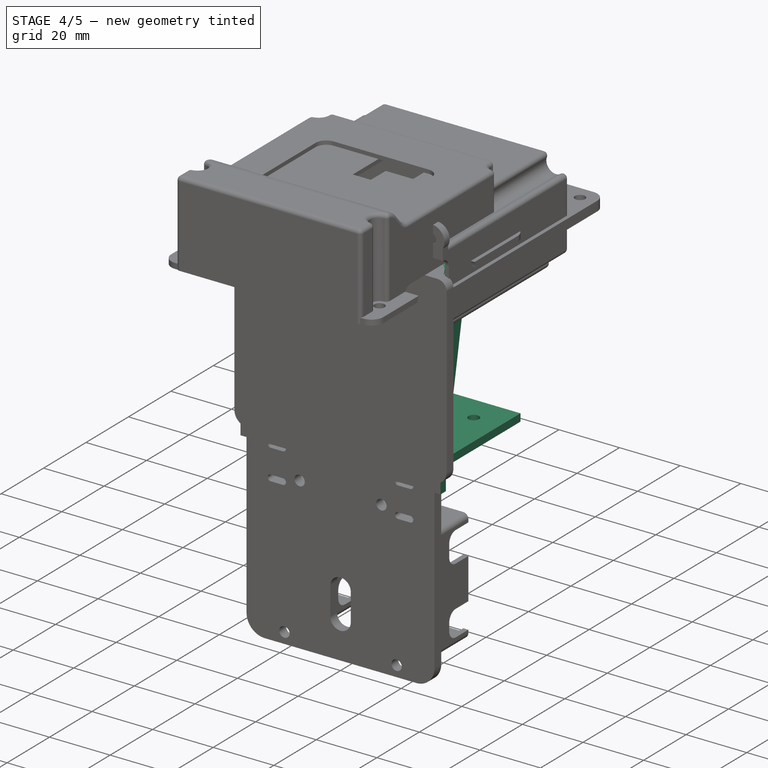
[diagram: stage 4 of 5 — iso view after this stage's code; geometry added in this stage tinted green]
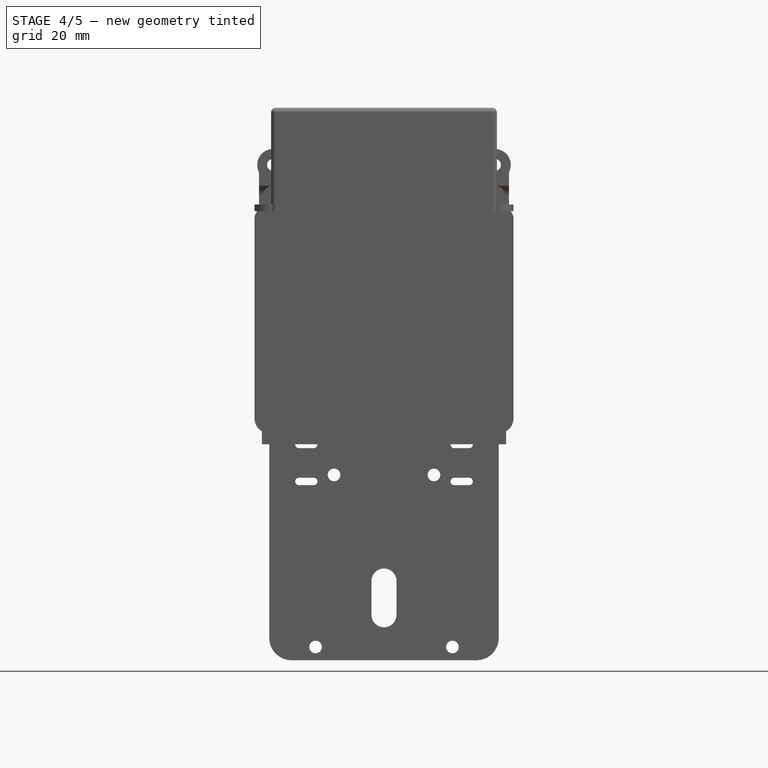
[diagram: stage 4 of 5 — front view after this stage's code; geometry added in this stage tinted green]
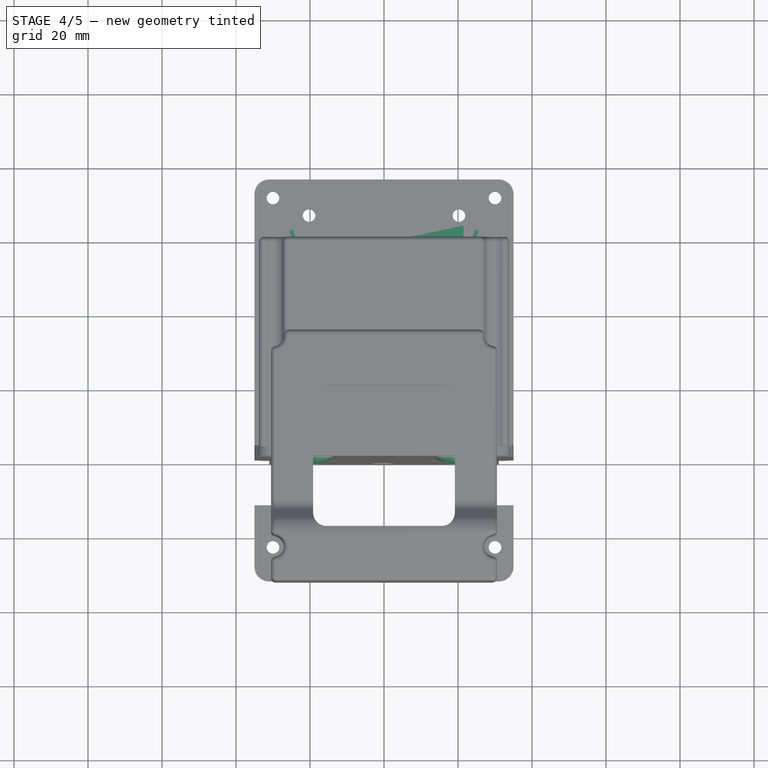
[diagram: stage 4 of 5 — top view after this stage's code; geometry added in this stage tinted green]
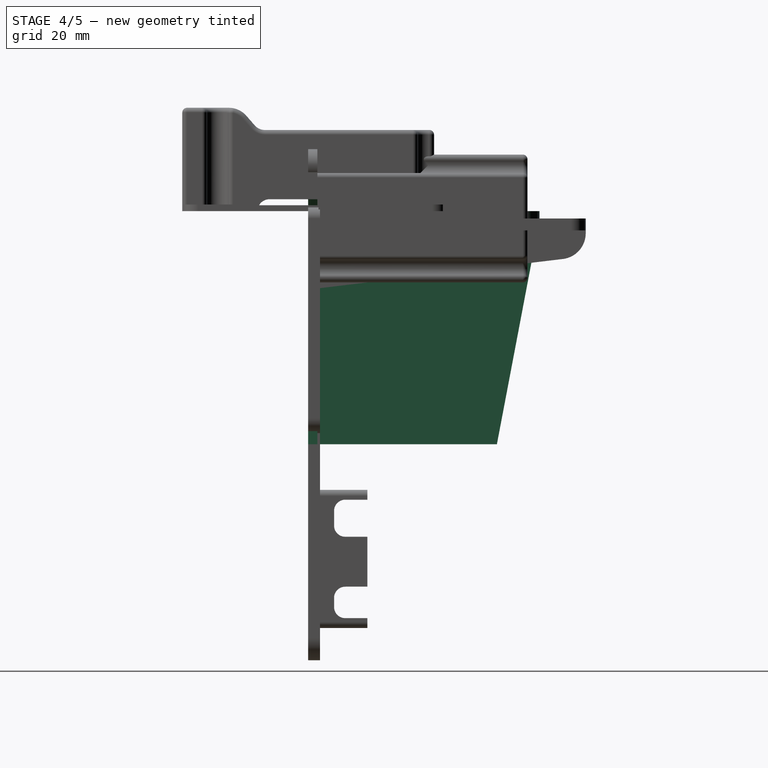
[diagram: stage 4 of 5 — right view after this stage's code; geometry added in this stage tinted green]
FEATURE [Part::Feature] Part__Feature  label="nut-pixhawk"
  Placement = pos=(0,-102,19) rot=(0,0,1;0.785398rad)
  shape: bbox 65.47 x 12.94 x 61.72 mm, 42 faces, 3 solids (baked)
FEATURE [Sketcher::SketchObject] Sketch
  FullyConstrained = true
  MapMode = 5
  Support = -> [XY_Plane]
  expr: Constraints[9] = <<data>>.B3
  expr: Constraints[8] = <<data>>.B2
  sketch-geometry (4):
    g0: LineSegment StartX=-33 StartY=0 StartZ=0 EndX=33 EndY=0 EndZ=0
    g1: LineSegment StartX=33 StartY=0 StartZ=0 EndX=33 EndY=2.5 EndZ=0
    g2: LineSegment StartX=33 StartY=2.5 StartZ=0 EndX=-33 EndY=2.5 EndZ=0
    g3: LineSegment StartX=-33 StartY=2.5 StartZ=0 EndX=-33 EndY=0 EndZ=0
  constraints (11):
    c: Coincident(g0,g1)
    c: Coincident(g1,g2)
    c: Coincident(g2,g3)
    c: Coincident(g3,g0)
    c: Horizontal(g2)
    c: Vertical(g1)
    c: Vertical(g3)
    c: PointOnObject(g0,g-1)
    c: DistanceX(g2,g2) = 66
    c: DistanceY(g1,g1) = 2.5
    c: Symmetric(g0,g0,g-2)
FEATURE [PartDesign::Pad] Pad
  Direction = (1,1,1)
  Length = 63
  Length2 = 100
  Profile = -> Sketch
  Refine = true
  Reversed = true
  Type = 0
  expr: Length = <<data>>.B4
FEATURE [Spreadsheet::Sheet] Spreadsheet  label="data"
  cells = A2=Principal width; B2=66; A3=thickness; B3=2.5; A4=pad length; B4=63; A6=Largeur serre_joint; B6=4.5; A7=largeur pixhawk; B7=43; C7=longueur ; D7=55; A8=jeu avec paroi; B8=5
FEATURE [PartDesign::Pad] Pad005
  BaseFeature = -> Pad
  Direction = (1,1,1)
  Length = 2.5
  Length2 = 100
  Profile = -> Sketch001
  Refine = true
  Reversed = true
  Type = 0
  expr: Length = <<data>>.B3
FEATURE [PartDesign::Mirrored] Mirrored
  BaseFeature = -> Pad005
  MirrorPlane = -> Sketch001 [V_Axis]
  Originals = -> [Pad005]
  Refine = true
FEATURE [Sketcher::SketchObject] Sketch013
  AttachmentOffset = pos=(0,3,0) rot=(0,0,1;0rad)
  FullyConstrained = false
  MapMode = 5
  Placement = pos=(0,3,0) rot=(0,0,1;0rad)
  Support = -> [XY_Plane]
  expr: Constraints[21] = <<data>>.B6 + <<data>>.D7 - 9
  expr: Constraints[20] = <<data>>.B8 + 10 - <<data>>.B6 / 2
  expr: Constraints[19] = <<data>>.B6
  expr: Constraints[16] = -<<data>>.B7 / 2
  sketch-geometry (8):
    g0: LineSegment StartX=-29.2349 StartY=50.5 StartZ=0 EndX=-21.5 EndY=50.5 EndZ=0
    g1: LineSegment StartX=-21.5 StartY=50.5 StartZ=0 EndX=-21.5 EndY=46 EndZ=0
    g2: LineSegment StartX=-21.5 StartY=46 StartZ=0 EndX=-29.2349 EndY=46 EndZ=0
    g3: LineSegment StartX=-29.2349 StartY=46 StartZ=0 EndX=-29.2349 EndY=50.5 EndZ=0
    g4: LineSegment StartX=-35.4353 StartY=17.25 StartZ=0 EndX=-21.5 EndY=17.25 EndZ=0
    g5: LineSegment StartX=-21.5 StartY=17.25 StartZ=0 EndX=-21.5 EndY=12.75 EndZ=0
    g6: LineSegment StartX=-21.5 StartY=12.75 StartZ=0 EndX=-35.4353 EndY=12.75 EndZ=0
    g7: LineSegment StartX=-35.4353 StartY=12.75 StartZ=0 EndX=-35.4353 EndY=17.25 EndZ=0
  constraints (22):
    c: Coincident(g0,g1)
    c: Coincident(g1,g2)
    c: Coincident(g2,g3)
    c: Coincident(g3,g0)
    c: Horizontal(g0)
    c: Horizontal(g2)
    c: Vertical(g1)
    c: Vertical(g3)
    c: Coincident(g4,g5)
    c: Coincident(g5,g6)
    c: Coincident(g6,g7)
    c: Coincident(g7,g4)
    c: Horizontal(g4)
    c: Horizontal(g6)
    c: Vertical(g5)
    c: Vertical(g7)
    c: DistanceX(g4) = -21.5
    c: DistanceX(g4,g1) = 0
    c: Equal(g1,g5)
    c: DistanceY(g1,g1) = 4.5
    c: DistanceY(g5) = 12.75
    c: DistanceY(g0) = 50.5
FEATURE [PartDesign::Pocket] Pocket
  BaseFeature = -> Mirrored
  Length = 5
  Length2 = 100
  Profile = -> Sketch013
  Refine = true
  Type = 0
FEATURE [PartDesign::Mirrored] Mirrored001
  BaseFeature = -> Pocket
  MirrorPlane = -> Sketch013 [V_Axis]
  Originals = -> [Pocket]
  Refine = true
FEATURE [Sketcher::SketchObject] Sketch014
  AttachmentOffset = pos=(0,2.5,-63) rot=(0,0,1;0rad)
  FullyConstrained = true
  MapMode = 5
  Placement = pos=(0,2.5,-63) rot=(0,0,1;0rad)
  Support = -> [XY_Plane]
  expr: .AttachmentOffset.Base.y = <<data>>.B3
  expr: .AttachmentOffset.Base.z = -<<data>>.B4
  expr: Constraints[22] = 30.5 / 2
  expr: Constraints[21] = 30.5 / 2
  sketch-geometry (8):
    g0: LineSegment StartX=-24 StartY=0 StartZ=0 EndX=24 EndY=0 EndZ=0
    g1: LineSegment StartX=24 StartY=0 StartZ=0 EndX=24 EndY=48 EndZ=0
    g2: LineSegment StartX=24 StartY=48 StartZ=0 EndX=-24 EndY=48 EndZ=0
    g3: LineSegment StartX=-24 StartY=48 StartZ=0 EndX=-24 EndY=0 EndZ=0
    g4: Circle CenterX=-15.25 CenterY=38.5 CenterZ=0 NormalX=0 NormalY=0 NormalZ=1 AngleXU=0 Radius=1.75
    g5: Circle CenterX=15.25 CenterY=38.5 CenterZ=0 NormalX=0 NormalY=0 NormalZ=1 AngleXU=0 Radius=1.75
    g6: Circle CenterX=15.25 CenterY=8 CenterZ=0 NormalX=0 NormalY=0 NormalZ=1 AngleXU=0 Radius=1.75
    g7: Circle CenterX=-15.25 CenterY=8 CenterZ=0 NormalX=0 NormalY=0 NormalZ=1 AngleXU=0 Radius=1.75
  constraints (23):
    c: Coincident(g0,g1)
    c: Coincident(g1,g2)
    c: Coincident(g2,g3)
    c: Coincident(g3,g0)
    c: Horizontal(g0)
    c: Vertical(g1)
    c: Vertical(g3)
    c: PointOnObject(g0,g-1)
    c: DistanceY(g3,g3) = 48
    c: Equal(g2,g3)
    c: Symmetric(g2,g1,g-2)
    c: Equal(g7,g4)
    c: Equal(g4,g5)
    c: Equal(g5,g6)
    c: Diameter(g5) = 3.5
    c: DistanceY(g7) = 8
    c: DistanceY(g6,g7) = 0
    c: DistanceX(g4,g7) = 0
    c: DistanceY(g5,g4) = 0
    c: DistanceX(g5,g6) = 0
    c: DistanceY(g7,g4) = 30.5
    c: DistanceX(g7,g-1) = 15.25
    c: DistanceX(g6) = 15.25
FEATURE [PartDesign::Pad] Pad006
  BaseFeature = -> Mirrored001
  Direction = (1,1,1)
  Length = 2.5
  Length2 = 100
  Profile = -> Sketch014
  Refine = true
  Type = 0
  expr: Length = <<data>>.B3
FEATURE [PartDesign::Pad] Pad007
  BaseFeature = -> Pad006
  Direction = (1,1,1)
  Length = 2.5
  Length2 = 100
  Midplane = true
  Profile = -> Sketch002
  Refine = true
  Type = 0
  expr: Length = <<data>>.B3
FEATURE [Sketcher::SketchObject] Sketch026
  FullyConstrained = true
  MapMode = 5
  Placement = pos=(0,0,0) rot=(1,0,0;1.5708rad)
  Support = -> [XZ_Plane006]
  sketch-geometry (6):
    g0: ArcOfCircle CenterX=-17.85 CenterY=23 CenterZ=0 NormalX=0 NormalY=0 NormalZ=1 AngleXU=0 Radius=5 StartAngle=1.5708 EndAngle=4.71239
    g1: ArcOfCircle CenterX=17.85 CenterY=23 CenterZ=0 NormalX=0 NormalY=0 NormalZ=1 AngleXU=0 Radius=5 StartAngle=4.71239 EndAngle=7.85398
    g2: LineSegment StartX=-17.85 StartY=18 StartZ=0 EndX=17.85 EndY=18 EndZ=0
    g3: LineSegment StartX=-17.85 StartY=28 StartZ=0 EndX=17.85 EndY=28 EndZ=0
    g4: Circle CenterX=-17.85 CenterY=23 CenterZ=0 NormalX=0 NormalY=0 NormalZ=1 AngleXU=0 Radius=1.9
    g5: Circle CenterX=17.85 CenterY=23 CenterZ=0 NormalX=0 NormalY=0 NormalZ=1 AngleXU=0 Radius=1.9
  constraints (13):
    c: Tangent(g0,g3) = 1.5708
    c: Tangent(g0,g2) = -1.5708
    c: Tangent(g2,g1) = -1.5708
    c: Tangent(g3,g1) = 1.5708
    c: Horizontal(g2)
    c: DistanceY(g-1,g0) = 18
    c: Radius(g0) = 5
    c: DistanceX(g0) = -17.85
    c: Symmetric(g0,g1,g-2)
    c: Coincident(g4,g0)
    c: Diameter(g4) = 3.8
    c: Coincident(g5,g1)
    c: Diameter(g5) = 3.8
FEATURE [PartDesign::Pad] Pad012
  BaseFeature = -> LinearPattern001
  Direction = (1,1,1)
  Length = 2.5
  Length2 = 100
  Profile = -> Sketch026
  Refine = true
  Reversed = true
  Type = 0
  expr: Length = <<data>>.B3
FEATURE [Sketcher::SketchObject] Sketch027
  FullyConstrained = true
  MapMode = 5
  Placement = pos=(0,0,0) rot=(1,0,0;1.5708rad)
  Support = -> [XZ_Plane006]
  sketch-geometry (5):
    g0: LineSegment StartX=7.5 StartY=15.5 StartZ=0 EndX=2 EndY=10 EndZ=0
    g1: LineSegment StartX=2 StartY=10 StartZ=0 EndX=7.5 EndY=4.5 EndZ=0
    g2: LineSegment StartX=7.5 StartY=4.5 StartZ=0 EndX=13 EndY=10 EndZ=0
    g3: LineSegment StartX=13 StartY=10 StartZ=0 EndX=7.5 EndY=15.5 EndZ=0
    g4: Circle CenterX=7.5 CenterY=10 CenterZ=0 NormalX=0 NormalY=0 NormalZ=1 AngleXU=0 Radius=5.5
  constraints (15):
    c: Coincident(g0,g1)
    c: Coincident(g1,g2)
    c: Coincident(g2,g3)
    c: Coincident(g3,g0)
    c: Equal(g0,g1)
    c: Equal(g0,g2)
    c: Equal(g0,g3)
    c: PointOnObject(g0,g4)
    c: PointOnObject(g1,g4)
    c: PointOnObject(g2,g4)
    c: PointOnObject(g3,g4)
    c: Angle(g-1,g2) = 0.785398
    c: DistanceX(g0,g-1) = -2
    c: DistanceY(g4) = 10
    c: Diameter(g4) = 11
FEATURE [PartDesign::Pocket] Pocket017
  BaseFeature = -> Pad012
  Length = 5
  Length2 = 100
  Profile = -> Sketch027
  Refine = true
  Type = 1
FEATURE [PartDesign::Mirrored] Mirrored007
  BaseFeature = -> Pocket017
  MirrorPlane = -> Sketch027 [V_Axis]
  Originals = -> [Pocket017]
  Refine = true
FEATURE [Sketcher::SketchObject] Sketch028
  AttachmentOffset = pos=(-6,-5.4,0) rot=(0,0,1;0rad)
  FullyConstrained = true
  MapMode = 5
  Placement = pos=(-6,1.2e-15,-5.4) rot=(1,0,0;1.5708rad)
  Support = -> [XZ_Plane006]
  sketch-geometry (5):
    g0: LineSegment StartX=6 StartY=14 StartZ=0 EndX=2 EndY=10 EndZ=0
    g1: LineSegment StartX=2 StartY=10 StartZ=0 EndX=6 EndY=6 EndZ=0
    g2: LineSegment StartX=6 StartY=6 StartZ=0 EndX=10 EndY=10 EndZ=0
    g3: LineSegment StartX=10 StartY=10 StartZ=0 EndX=6 EndY=14 EndZ=0
    g4: Circle CenterX=6 CenterY=10 CenterZ=0 NormalX=0 NormalY=0 NormalZ=1 AngleXU=0 Radius=4
  constraints (15):
    c: Coincident(g0,g1)
    c: Coincident(g1,g2)
    c: Coincident(g2,g3)
    c: Coincident(g3,g0)
    c: Equal(g0,g1)
    c: Equal(g0,g2)
    c: Equal(g0,g3)
    c: PointOnObject(g0,g4)
    c: PointOnObject(g1,g4)
    c: PointOnObject(g2,g4)
    c: PointOnObject(g3,g4)
    c: Angle(g-1,g2) = 0.785398
    c: DistanceX(g0,g-1) = -2
    c: DistanceY(g4) = 10
    c: Diameter(g4) = 8
FEATURE [PartDesign::Pocket] Pocket018
  BaseFeature = -> Mirrored007
  Length = 5
  Length2 = 100
  Profile = -> Sketch028
  Refine = true
  Type = 1
FEATURE [Sketcher::SketchObject] Sketch029
  FullyConstrained = true
  MapMode = 5
  Placement = pos=(0,0,0) rot=(1,0,0;1.5708rad)
  Support = -> [XZ_Plane006]
  sketch-geometry (4):
    g0: ArcOfCircle CenterX=-1.25 CenterY=18.4 CenterZ=0 NormalX=0 NormalY=0 NormalZ=1 AngleXU=0 Radius=1.4 StartAngle=1.5708 EndAngle=4.71239
    g1: ArcOfCircle CenterX=1.25 CenterY=18.4 CenterZ=0 NormalX=0 NormalY=0 NormalZ=1 AngleXU=0 Radius=1.4 StartAngle=4.71239 EndAngle=7.85398
    g2: LineSegment StartX=-1.25 StartY=17 StartZ=0 EndX=1.25 EndY=17 EndZ=0
    g3: LineSegment StartX=-1.25 StartY=19.8 StartZ=0 EndX=1.25 EndY=19.8 EndZ=0
  constraints (9):
    c: Tangent(g0,g3) = 1.5708
    c: Tangent(g0,g2) = -1.5708
    c: Tangent(g2,g1) = -1.5708
    c: Tangent(g3,g1) = 1.5708
    c: Horizontal(g2)
    c: Symmetric(g0,g1,g-2)
    c: Diameter(g0) = 2.8
    c: DistanceX(g2,g2) = 2.5
    c: DistanceY(g1) = 17
FEATURE [PartDesign::Pocket] Pocket019
  BaseFeature = -> Pocket018
  Length = 5
  Length2 = 100
  Profile = -> Sketch029
  Refine = true
  Type = 0
FEATURE [PartDesign::Fillet] Fillet004
  Base = -> Pocket019 [Edge67,Edge9]
  BaseFeature = -> Pocket019
  Radius = 14
  Refine = true
  SupportTransform = false
FEATURE [PartDesign::Fillet] Fillet005
  Base = -> Fillet004 [Edge75,Edge72,Edge63,Edge60]
  BaseFeature = -> Fillet004
  Radius = 3
  Refine = true
  SupportTransform = false
FEATURE [PartDesign::Fillet] Fillet006
  Base = -> Fillet005 [Edge75,Edge97,Edge34,Edge120]
  BaseFeature = -> Fillet005
  Radius = 1
  Refine = true
  SupportTransform = false
FEATURE [Sketcher::SketchObject] Sketch022
  FullyConstrained = true
  MapMode = 5
  Placement = pos=(0,0,0) rot=(1,0,0;1.5708rad)
  Support = -> [XZ_Plane005]
  sketch-geometry (2):
    g0: Circle CenterX=0 CenterY=0 CenterZ=0 NormalX=0 NormalY=0 NormalZ=1 AngleXU=0 Radius=1.7
    g1: Circle CenterX=0 CenterY=0 CenterZ=0 NormalX=0 NormalY=0 NormalZ=1 AngleXU=0 Radius=4.1
  constraints (4):
    c: Coincident(g0,g-1)
    c: Coincident(g1,g0)
    c: Diameter(g0) = 3.4
    c: Diameter(g1) = 8.2
FEATURE [PartDesign::Pad] Pad009
  Direction = (1,1,1)
  Length = 3.6
  Length2 = 2
  Placement = pos=(0,0,0) rot=(1,0,0;1.5708rad)
  Profile = -> Sketch022
  Refine = true
  Type = 4
FEATURE [Sketcher::SketchObject] Sketch023
  FullyConstrained = false
  MapMode = 5
  Support = -> [XY_Plane005]
  sketch-geometry (4):
    g0: LineSegment StartX=-8.22648 StartY=-0.519337 StartZ=0 EndX=7.4747 EndY=-3.28788 EndZ=0
    g1: LineSegment StartX=-8.22648 StartY=-0.519337 StartZ=0 EndX=-2.79825 EndY=5.87613 EndZ=0
    g2: LineSegment StartX=-2.79825 StartY=5.87613 StartZ=0 EndX=6.43966 EndY=4.79567 EndZ=0
    g3: LineSegment StartX=6.43966 StartY=4.79567 StartZ=0 EndX=7.4747 EndY=-3.28788 EndZ=0
  constraints (5):
    c: Angle(g0,g-1) = 0.174533
    c: Coincident(g1,g0)
    c: Coincident(g1,g2)
    c: Coincident(g2,g3)
    c: Coincident(g3,g0)
FEATURE [PartDesign::Pocket] Pocket016
  BaseFeature = -> Pad009
  Length = 5
  Length2 = 100
  Midplane = true
  Placement = pos=(0,0,0) rot=(1,0,0;1.5708rad)
  Profile = -> Sketch023
  Refine = true
  Type = 1
FEATURE [PartDesign::Fillet] Fillet007
  Base = -> Pocket016 [Edge3]
  BaseFeature = -> Pocket016
  Placement = pos=(0,0,0) rot=(1,0,0;1.5708rad)
  Radius = 1.9
  Refine = true
  SupportTransform = false
FEATURE [PartDesign::Body] Body003  label="rondelle001"
  Group = -> [Sketch022,Pad009,Sketch023,Pocket016,Fillet007]
  Origin = -> Origin005
  Placement = pos=(-18.2274,1.92379,10) rot=(0,0,1;0.174533rad)
  Tip = -> Fillet007
FEATURE [PartDesign::Body] Body004
  Group = -> [Sketch024,Pad010,Sketch025,Pad011,LinearPattern001,Sketch026,Pad012,Sketch027,Pocket017,Mirrored007,Sketch028,Pocket018,Sketch029,Pocket019,Fillet004,Fillet005,Fillet006]
  Origin = -> Origin006
  Placement = pos=(0,0,-13) rot=(0,0,1;0rad)
  Tip = -> Fillet006
FEATURE [Part::FeaturePython] Clone001  label="rondelle002"  # Draft clone (typed FeaturePython)
  AttacherType = Attacher::AttachEngine3D
  Fuse = false
  Objects = -> [Body003]
  Placement = pos=(-18.2274,1.92379,10) rot=(0,0,1;0.174533rad)
  Scale = (1,1,1)
FEATURE [Part::Mirroring] Part__Mirroring001  label="rondelle002 (Mirror #2)"
  Base = (0,0,0)
  Normal = (1,0,0)
  Source = -> Clone001
FEATURE [Part::Fuse] Fusion001
  Base = -> Body003
  Refine = true
  Tool = -> Body004
FEATURE [Part::Fuse] Fusion002  label="Fusion004"
  Base = -> Part__Mirroring001
  Refine = true
  Tool = -> Fusion001
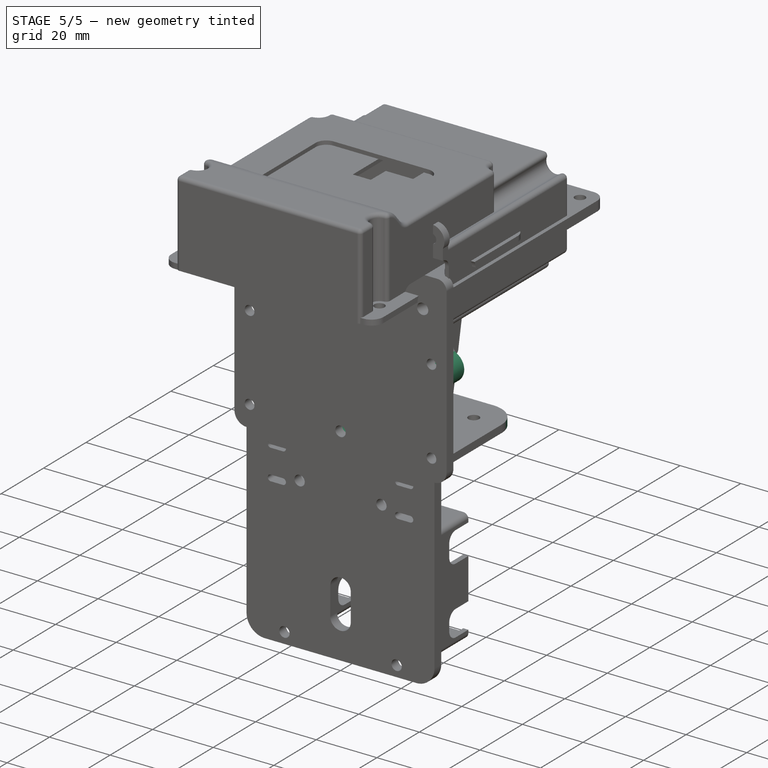
[diagram: stage 5 of 5 — iso view after this stage's code; geometry added in this stage tinted green]
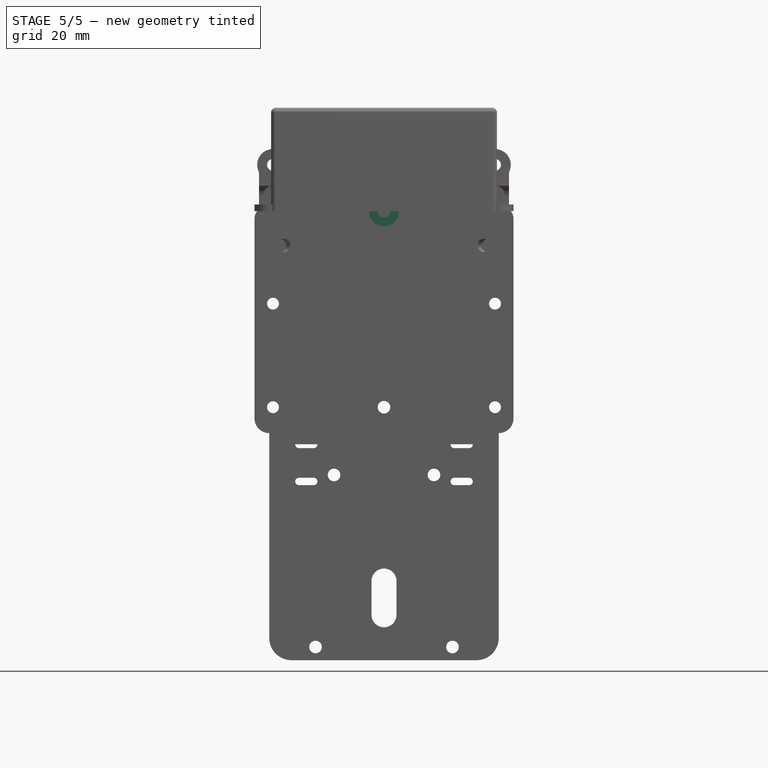
[diagram: stage 5 of 5 — front view after this stage's code; geometry added in this stage tinted green]
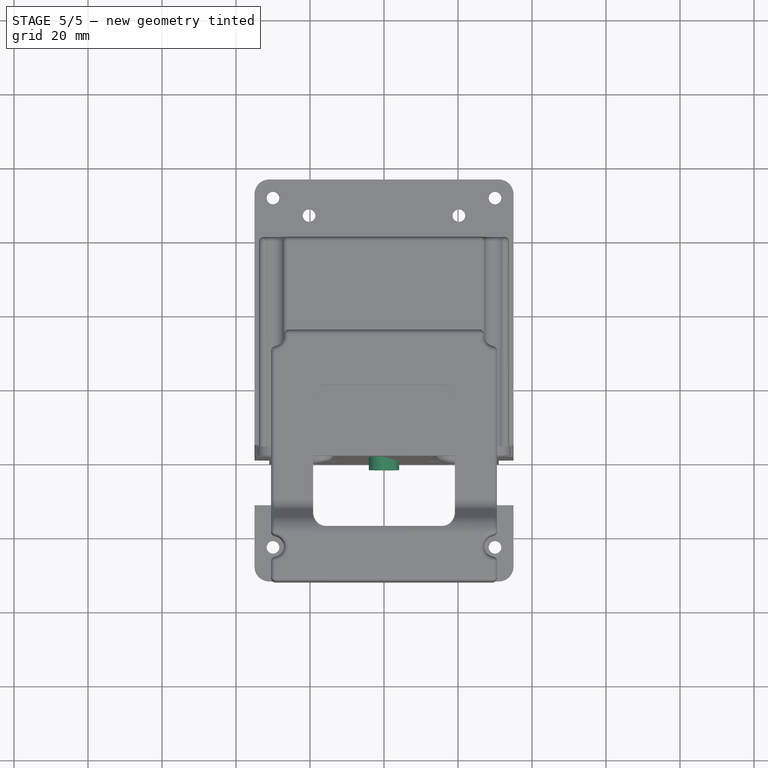
[diagram: stage 5 of 5 — top view after this stage's code; geometry added in this stage tinted green]
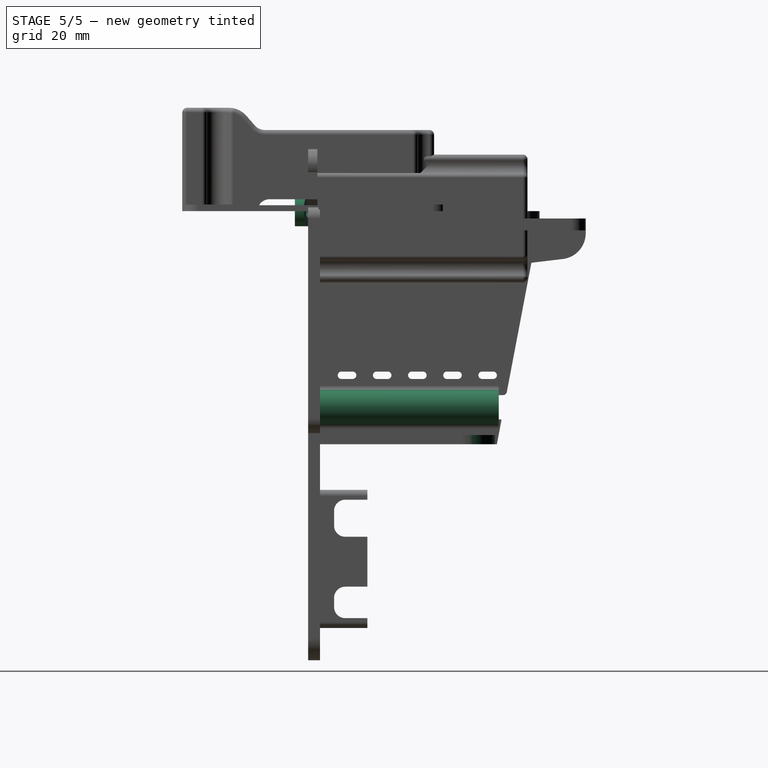
[diagram: stage 5 of 5 — right view after this stage's code; geometry added in this stage tinted green]
FEATURE [Sketcher::SketchObject] Sketch001
  AttachmentOffset = pos=(0,2.5,0) rot=(0,0,1;0rad)
  FullyConstrained = false
  MapMode = 5
  Placement = pos=(0,2.5,0) rot=(0,0,1;0rad)
  Support = -> [XY_Plane]
  expr: Constraints[12] = <<data>>.B2 / 2
  expr: Constraints[7] = <<data>>.B7 / 2
  expr: Constraints[2] = <<data>>.D7 + <<data>>.B8
  expr: .AttachmentOffset.Base.y = <<data>>.B3
  sketch-geometry (7):
    g0: GeomPoint X=0 Y=60 Z=0
    g1: ArcOfCircle CenterX=-67.0136 CenterY=30.2418 CenterZ=0 NormalX=0 NormalY=0 NormalZ=1 AngleXU=0 Radius=45.5136 StartAngle=5.55642 EndAngle=6.76631
    g2: ArcOfCircle CenterX=-21.5 CenterY=54.1176 CenterZ=0 NormalX=0 NormalY=0 NormalZ=1 AngleXU=0 Radius=5.88236 StartAngle=1.5708 EndAngle=3.62472
    g3: LineSegment StartX=-21.5 StartY=60 StartZ=0 EndX=0 EndY=60 EndZ=0
    g4: LineSegment StartX=-33 StartY=-1.42e-14 StartZ=0 EndX=0 EndY=0 EndZ=0
    g5: LineSegment StartX=0 StartY=0 StartZ=0 EndX=0 EndY=60 EndZ=0
    g6: GeomPoint X=-21.5 Y=30.2418 Z=0
  constraints (16):
    c: PointOnObject(g1,g-1)
    c: PointOnObject(g0,g-2)
    c: DistanceY(g0) = 60
    c: Tangent(g2,g1) = 1.5708
    c: Coincident(g3,g0)
    c: Horizontal(g3)
    c: Tangent(g3,g2) = 1.5708
    c: DistanceX(g3,g3) = 21.5
    c: Coincident(g4,g1)
    c: Coincident(g4,g-1)
    c: Coincident(g5,g4)
    c: Coincident(g5,g3)
    c: DistanceX(g4,g4) = 33
    c: PointOnObject(g6,g1)
    c: DistanceY(g6,g1) = 0
    c: DistanceX(g2,g6) = 0
FEATURE [Sketcher::SketchObject] Sketch002
  FullyConstrained = true
  MapMode = 5
  Placement = pos=(0,0,0) rot=(0.57735,0.57735,0.57735;2.0944rad)
  Support = -> [YZ_Plane]
  expr: Constraints[13] = <<data>>.B3
  expr: Constraints[4] = <<data>>.D7 + <<data>>.B8 + <<data>>.B3
  expr: Constraints[5] = <<data>>.B4
  sketch-geometry (5):
    g0: LineSegment StartX=0 StartY=0 StartZ=0 EndX=62.5 EndY=0 EndZ=0
    g1: LineSegment StartX=0 StartY=-63 StartZ=0 EndX=0 EndY=0 EndZ=0
    g2: LineSegment StartX=0 StartY=-63 StartZ=0 EndX=51 EndY=-63 EndZ=0
    g3: LineSegment StartX=51 StartY=-63 StartZ=0 EndX=62.5 EndY=-2.5 EndZ=0
    g4: LineSegment StartX=62.5 StartY=0 StartZ=0 EndX=62.5 EndY=-2.5 EndZ=0
  constraints (14):
    c: Coincident(g0,g-1)
    c: PointOnObject(g0,g-1)
    c: PointOnObject(g1,g-2)
    c: Coincident(g1,g0)
    c: DistanceX(g0,g0) = 62.5
    c: DistanceY(g1,g1) = 63
    c: Coincident(g2,g1)
    c: Horizontal(g2)
    c: Coincident(g3,g2)
    c: Coincident(g4,g0)
    c: Coincident(g4,g3)
    c: Vertical(g4)
    c: DistanceX(g2,g2) = 51
    c: DistanceY(g4,g4) = 2.5
FEATURE [Sketcher::SketchObject] Sketch003
  AttachmentOffset = pos=(-25.1,-9,8) rot=(0,0.707107,0.707107;0.349066rad)
  FullyConstrained = true
  MapMode = 5
  Placement = pos=(-25.1,-8,-9) rot=(0.970288,0,0.241955;1.60095rad)
  Support = -> [XZ_Plane]
  sketch-geometry (1):
    g0: Circle CenterX=0 CenterY=0 CenterZ=0 NormalX=0 NormalY=0 NormalZ=1 AngleXU=0 Radius=1.8
  constraints (2):
    c: Diameter(g0) = 3.6
    c: Coincident(g0,g-1)
FEATURE [Sketcher::SketchObject] Sketch004
  AttachmentOffset = pos=(0,-53,0) rot=(0,0,1;0rad)
  FullyConstrained = true
  MapMode = 5
  Placement = pos=(0,1.18e-14,-53) rot=(1,0,0;1.5708rad)
  Support = -> [XZ_Plane]
  sketch-geometry (1):
    g0: Circle CenterX=0 CenterY=0 CenterZ=0 NormalX=0 NormalY=0 NormalZ=1 AngleXU=0 Radius=1.8
  constraints (2):
    c: Coincident(g0,g-1)
    c: Diameter(g0) = 3.6
FEATURE [Sketcher::SketchObject] Sketch007
  AttachmentOffset = pos=(-1,-3,3) rot=(0,0,1;0rad)
  FullyConstrained = false
  MapMode = 5
  Placement = pos=(3,-1,-3) rot=(0.57735,0.57735,0.57735;2.0944rad)
  Support = -> [YZ_Plane]
  sketch-geometry (8):
    g0: ArcOfCircle CenterX=10 CenterY=-11.3631 CenterZ=0 NormalX=0 NormalY=0 NormalZ=1 AngleXU=0 Radius=1 StartAngle=1.5708 EndAngle=4.71239
    g1: ArcOfCircle CenterX=13 CenterY=-11.3631 CenterZ=0 NormalX=0 NormalY=0 NormalZ=1 AngleXU=0 Radius=1 StartAngle=4.71239 EndAngle=7.85398
    g2: LineSegment StartX=10 StartY=-12.3631 StartZ=0 EndX=13 EndY=-12.3631 EndZ=0
    g3: LineSegment StartX=10 StartY=-10.3631 StartZ=0 EndX=13 EndY=-10.3631 EndZ=0
    g4: ArcOfCircle CenterX=10 CenterY=-41.3631 CenterZ=0 NormalX=0 NormalY=0 NormalZ=1 AngleXU=0 Radius=1 StartAngle=1.5708 EndAngle=4.71239
    g5: ArcOfCircle CenterX=13 CenterY=-41.3631 CenterZ=0 NormalX=0 NormalY=0 NormalZ=1 AngleXU=0 Radius=1 StartAngle=4.71239 EndAngle=7.85398
    g6: LineSegment StartX=10 StartY=-42.3631 StartZ=0 EndX=13 EndY=-42.3631 EndZ=0
    g7: LineSegment StartX=10 StartY=-40.3631 StartZ=0 EndX=13 EndY=-40.3631 EndZ=0
  constraints (19):
    c: Tangent(g0,g3) = 1.5708
    c: Tangent(g0,g2) = -1.5708
    c: Tangent(g2,g1) = -1.5708
    c: Tangent(g3,g1) = 1.5708
    c: Horizontal(g2)
    c: Equal(g0,g1)
    c: Diameter(g0) = 2
    c: DistanceX(g3,g3) = 3
    c: DistanceX(g0) = 10
    c: Tangent(g4,g7) = 1.5708
    c: Tangent(g4,g6) = -1.5708
    c: Tangent(g6,g5) = -1.5708
    c: Tangent(g7,g5) = 1.5708
    c: Horizontal(g6)
    c: Equal(g4,g5)
    c: DistanceX(g7,g7) = 3
    c: Diameter(g4) = 2
    c: DistanceX(g5,g1) = 0
    c: DistanceY(g4,g0) = 28
FEATURE [Sketcher::SketchObject] Sketch009
  FullyConstrained = true
  MapMode = 5
  Placement = pos=(0,0,0) rot=(1,0,0;1.5708rad)
  Support = -> [XZ_Plane001]
  sketch-geometry (2):
    g0: Circle CenterX=0 CenterY=0 CenterZ=0 NormalX=0 NormalY=0 NormalZ=1 AngleXU=0 Radius=1.7
    g1: Circle CenterX=0 CenterY=0 CenterZ=0 NormalX=0 NormalY=0 NormalZ=1 AngleXU=0 Radius=4.1
  constraints (4):
    c: Coincident(g0,g-1)
    c: Coincident(g1,g0)
    c: Diameter(g0) = 3.4
    c: Diameter(g1) = 8.2
FEATURE [PartDesign::Pad] Pad003
  Direction = (1,1,1)
  Length = 3.6
  Length2 = 2
  Placement = pos=(0,0,0) rot=(1,0,0;1.5708rad)
  Profile = -> Sketch009
  Refine = true
  Type = 4
FEATURE [Sketcher::SketchObject] Sketch010
  FullyConstrained = false
  MapMode = 5
  Support = -> [XY_Plane001]
  sketch-geometry (4):
    g0: LineSegment StartX=-8.26631 StartY=2.10294 StartZ=0 EndX=7.08793 EndY=-2.01121 EndZ=0
    g1: LineSegment StartX=-8.26631 StartY=2.10294 StartZ=0 EndX=-2.79825 EndY=5.87613 EndZ=0
    g2: LineSegment StartX=-2.79825 StartY=5.87613 StartZ=0 EndX=6.43966 EndY=4.79567 EndZ=0
    g3: LineSegment StartX=6.43966 StartY=4.79567 StartZ=0 EndX=7.08793 EndY=-2.01121 EndZ=0
  constraints (5):
    c: Angle(g0,g-1) = 0.261799
    c: Coincident(g1,g0)
    c: Coincident(g1,g2)
    c: Coincident(g2,g3)
    c: Coincident(g3,g0)
FEATURE [PartDesign::Pocket] Pocket006
  BaseFeature = -> Pad003
  Length = 5
  Length2 = 100
  Midplane = true
  Placement = pos=(0,0,0) rot=(1,0,0;1.5708rad)
  Profile = -> Sketch010
  Refine = true
  Type = 1
FEATURE [Sketcher::SketchObject] Sketch015
  AttachmentOffset = pos=(0,0,-2.5) rot=(0,0,1;0rad)
  FullyConstrained = true
  MapMode = 5
  Placement = pos=(0,2.5,6e-16) rot=(1,0,0;1.5708rad)
  Support = -> [XZ_Plane]
  expr: .AttachmentOffset.Base.z = -<<data>>.B3
  sketch-geometry (1):
    g0: Circle CenterX=0 CenterY=-53 CenterZ=0 NormalX=0 NormalY=0 NormalZ=1 AngleXU=0 Radius=3.5
  constraints (3):
    c: PointOnObject(g0,g-2)
    c: Diameter(g0) = 7
    c: DistanceY(g0) = -53
FEATURE [PartDesign::Pocket] Pocket007
  BaseFeature = -> Pad007
  Length = 5
  Length2 = 100
  Profile = -> Sketch015
  Refine = true
  Type = 1
FEATURE [Sketcher::SketchObject] Sketch016
  FullyConstrained = true
  MapMode = 5
  Placement = pos=(0,0,0) rot=(1,0,0;1.5708rad)
  Support = -> [XZ_Plane]
  expr: Constraints[4] = <<data>>.B3 + 7
  sketch-geometry (2):
    g0: Circle CenterX=0 CenterY=-53 CenterZ=0 NormalX=0 NormalY=0 NormalZ=1 AngleXU=0 Radius=3.5
    g1: Circle CenterX=0 CenterY=-53 CenterZ=0 NormalX=0 NormalY=0 NormalZ=1 AngleXU=0 Radius=4.75
  constraints (5):
    c: PointOnObject(g0,g-2)
    c: Diameter(g0) = 7
    c: DistanceY(g0) = -53
    c: Coincident(g1,g0)
    c: Diameter(g1) = 9.5
FEATURE [PartDesign::Pad] Pad008
  BaseFeature = -> Pocket007
  Direction = (1,1,1)
  Length = 51.5
  Length2 = 100
  Profile = -> Sketch016
  Refine = true
  Reversed = true
  Type = 0
FEATURE [PartDesign::Pocket] Pocket008
  BaseFeature = -> Pad008
  Length = 5
  Length2 = 100
  Profile = -> Sketch007
  Refine = true
  Type = 0
FEATURE [Sketcher::SketchObject] Sketch017
  FullyConstrained = false
  MapMode = 5
  Placement = pos=(0,0,0) rot=(1,0,0;1.5708rad)
  Support = -> [XZ_Plane]
  expr: Constraints[3] = -<<data>>.B2 / 2
  expr: Constraints[1] = -<<data>>.B4
  sketch-geometry (8):
    g0: GeomPoint X=-24 Y=-63 Z=0
    g1: GeomPoint X=-33 Y=9e-16 Z=0
    g2: ArcOfCircle CenterX=24.1963 CenterY=-55.3341 CenterZ=0 NormalX=0 NormalY=0 NormalZ=1 AngleXU=0 Radius=48.8021 StartAngle=2.94055 EndAngle=3.29933
    g3: ArcOfCircle CenterX=-54.0601 CenterY=-39.3857 CenterZ=0 NormalX=0 NormalY=0 NormalZ=1 AngleXU=0 Radius=31.0628 StartAngle=6.08214 EndAngle=6.84731
    g4: ArcOfCircle CenterX=1.77915 CenterY=-4.05545 CenterZ=0 NormalX=0 NormalY=0 NormalZ=1 AngleXU=0 Radius=35.0148 StartAngle=3.02551 EndAngle=3.70572
    g5: LineSegment StartX=-33 StartY=9e-16 StartZ=0 EndX=-72.4037 EndY=-18.5803 EndZ=0
    g6: LineSegment StartX=-72.4037 StartY=-18.5803 StartZ=0 EndX=-41.0152 EndY=-73.4653 EndZ=0
    g7: LineSegment StartX=-41.0152 StartY=-73.4653 StartZ=0 EndX=-24 EndY=-63 EndZ=0
  constraints (12):
    c: DistanceX(g0) = -24
    c: DistanceY(g0) = -63
    c: PointOnObject(g1,g-1)
    c: DistanceX(g1) = -33
    c: Coincident(g2,g0)
    c: Coincident(g4,g1)
    c: Tangent(g4,g3) = 1.5708
    c: Tangent(g3,g2) = 1.5708
    c: Coincident(g5,g4)
    c: Coincident(g6,g5)
    c: Coincident(g7,g6)
    c: Coincident(g7,g2)
FEATURE [Sketcher::SketchObject] Sketch018
  FullyConstrained = true
  MapMode = 5
  Placement = pos=(0,0,0) rot=(0.57735,0.57735,0.57735;2.0944rad)
  Support = -> [YZ_Plane]
  expr: Constraints[22] = <<data>>.B6 + <<data>>.D7 - 9 + <<data>>.B3
  expr: Constraints[21] = <<data>>.B8 + 10 - <<data>>.B6 / 2 + <<data>>.B3
  expr: Constraints[18] = -<<data>>.B3 - 1
  expr: Constraints[16] = <<data>>.B6
  sketch-geometry (8):
    g0: LineSegment StartX=15.25 StartY=-3.5 StartZ=0 EndX=19.75 EndY=-3.5 EndZ=0
    g1: LineSegment StartX=19.75 StartY=-3.5 StartZ=0 EndX=19.75 EndY=-6 EndZ=0
    g2: LineSegment StartX=19.75 StartY=-6 StartZ=0 EndX=15.25 EndY=-6 EndZ=0
    g3: LineSegment StartX=15.25 StartY=-6 StartZ=0 EndX=15.25 EndY=-3.5 EndZ=0
    g4: LineSegment StartX=48.5 StartY=-3.5 StartZ=0 EndX=53 EndY=-3.5 EndZ=0
    g5: LineSegment StartX=53 StartY=-3.5 StartZ=0 EndX=53 EndY=-6 EndZ=0
    g6: LineSegment StartX=53 StartY=-6 StartZ=0 EndX=48.5 EndY=-6 EndZ=0
    g7: LineSegment StartX=48.5 StartY=-6 StartZ=0 EndX=48.5 EndY=-3.5 EndZ=0
  constraints (24):
    c: Coincident(g0,g1)
    c: Coincident(g1,g2)
    c: Coincident(g2,g3)
    c: Coincident(g3,g0)
    c: Horizontal(g0)
    c: Horizontal(g2)
    c: Vertical(g1)
    c: Vertical(g3)
    c: Coincident(g4,g5)
    c: Coincident(g5,g6)
    c: Coincident(g6,g7)
    c: Coincident(g7,g4)
    c: Horizontal(g4)
    c: Horizontal(g6)
    c: Vertical(g5)
    c: Vertical(g7)
    c: DistanceX(g0,g0) = 4.5
    c: Equal(g0,g4)
    c: DistanceY(g0) = -3.5
    c: DistanceY(g4,g0) = 0
    c: DistanceY(g3,g3) = 2.5
    c: DistanceX(g-1,g2) = 15.25
    c: DistanceX(g5) = 53
    c: Equal(g7,g1)
FEATURE [PartDesign::Pocket] Pocket009
  BaseFeature = -> Pocket008
  Length = 5
  Length2 = 100
  Midplane = true
  Profile = -> Sketch018
  Refine = true
  Type = 1
FEATURE [Sketcher::SketchObject] Sketch019
  FullyConstrained = false
  MapMode = 5
  Placement = pos=(0,0,0) rot=(1,0,0;1.5708rad)
  Support = -> [XZ_Plane]
  sketch-geometry (4):
    g0: ArcOfCircle CenterX=7.40827 CenterY=-8.60352 CenterZ=0 NormalX=0 NormalY=0 NormalZ=1 AngleXU=0 Radius=2.75 StartAngle=1.5708 EndAngle=4.71239
    g1: ArcOfCircle CenterX=16.4083 CenterY=-8.60352 CenterZ=0 NormalX=0 NormalY=0 NormalZ=1 AngleXU=0 Radius=2.75 StartAngle=4.71239 EndAngle=7.85398
    g2: LineSegment StartX=7.40827 StartY=-11.3535 StartZ=0 EndX=16.4083 EndY=-11.3535 EndZ=0
    g3: LineSegment StartX=7.40827 StartY=-5.85352 StartZ=0 EndX=16.4083 EndY=-5.85352 EndZ=0
  constraints (8):
    c: Tangent(g0,g3) = 1.5708
    c: Tangent(g0,g2) = -1.5708
    c: Tangent(g2,g1) = -1.5708
    c: Tangent(g3,g1) = 1.5708
    c: Horizontal(g2)
    c: Equal(g0,g1)
    c: DistanceY(g0,g0) = 5.5
    c: DistanceX(g3,g3) = 9
FEATURE [PartDesign::Pocket] Pocket010
  BaseFeature = -> Pocket009
  Length = 5
  Length2 = 100
  Profile = -> Sketch019
  Refine = true
  Type = 1
FEATURE [PartDesign::Mirrored] Mirrored002
  BaseFeature = -> Pocket010
  MirrorPlane = -> Sketch019 [V_Axis]
  Originals = -> [Pocket010]
  Refine = true
FEATURE [PartDesign::LinearPattern] LinearPattern
  BaseFeature = -> Mirrored002
  Direction = -> Sketch007 [H_Axis]
  Length = 38
  Occurrences = 5
  Originals = -> [Pocket008]
  Refine = true
FEATURE [PartDesign::Pocket] Pocket011
  BaseFeature = -> LinearPattern
  Length = 5
  Length2 = 100
  Profile = -> Sketch003
  Refine = true
  Type = 1
FEATURE [PartDesign::Mirrored] Mirrored003
  BaseFeature = -> Pocket011
  MirrorPlane = -> YZ_Plane
  Originals = -> [Pocket011]
  Refine = true
FEATURE [PartDesign::Pocket] Pocket012
  BaseFeature = -> Mirrored003
  Length = 5
  Length2 = 100
  Profile = -> Sketch004
  Refine = true
  Type = 1
FEATURE [PartDesign::Pocket] Pocket013
  BaseFeature = -> Pocket012
  Length = 5
  Length2 = 100
  Profile = -> Sketch017
  Refine = true
  Type = 1
FEATURE [Sketcher::SketchObject] Sketch020
  FullyConstrained = false
  MapMode = 5
  Support = -> [XY_Plane]
  sketch-geometry (6):
    g0: LineSegment StartX=-21.5563 StartY=20.2027 StartZ=0 EndX=-23.0652 EndY=21.8255 EndZ=0
    g1: LineSegment StartX=-23.0652 StartY=21.8255 StartZ=0 EndX=-23.4938 EndY=19.6324 EndZ=0
    g2: LineSegment StartX=-23.4938 StartY=19.6324 StartZ=0 EndX=-21.5563 EndY=20.2027 EndZ=0
    g3: LineSegment StartX=-28.1685 StartY=58.7319 StartZ=0 EndX=-21.8675 EndY=53.4087 EndZ=0
    g4: LineSegment StartX=-28.1685 StartY=58.7319 StartZ=0 EndX=-27.9513 EndY=52.3585 EndZ=0
    g5: LineSegment StartX=-27.9513 StartY=52.3585 StartZ=0 EndX=-21.8675 EndY=53.4087 EndZ=0
  constraints (6):
    c: Coincident(g1,g0)
    c: Coincident(g2,g1)
    c: Coincident(g2,g0)
    c: Coincident(g4,g3)
    c: Coincident(g5,g4)
    c: Coincident(g5,g3)
FEATURE [PartDesign::Pocket] Pocket014
  BaseFeature = -> Pocket013
  Length = 5
  Length2 = 100
  Profile = -> Sketch020
  Refine = true
  Type = 0
FEATURE [PartDesign::Mirrored] Mirrored004
  BaseFeature = -> Pocket014
  MirrorPlane = -> Sketch020 [V_Axis]
  Originals = -> [Pocket014]
  Refine = true
FEATURE [PartDesign::Fillet] Fillet
  Base = -> Mirrored004 [Edge111,Edge215,Edge327,Edge333]
  BaseFeature = -> Mirrored004
  Radius = 2
  Refine = true
  SupportTransform = false
FEATURE [PartDesign::Fillet] Fillet001
  Base = -> Fillet [Edge130]
  BaseFeature = -> Fillet
  Radius = 1
  Refine = true
  SupportTransform = false
FEATURE [PartDesign::Fillet] Fillet002
  Base = -> Fillet001 [Edge82]
  BaseFeature = -> Fillet001
  Radius = 0.2
  Refine = true
  SupportTransform = false
FEATURE [PartDesign::Fillet] Fillet003
  Base = -> Fillet002 [Edge169,Edge192]
  BaseFeature = -> Fillet002
  Radius = 9
  Refine = true
  SupportTransform = false
FEATURE [PartDesign::Mirrored] Mirrored005
  BaseFeature = -> Fillet003
  MirrorPlane = -> Sketch017 [V_Axis]
  Originals = -> [Pocket013]
  Refine = true
FEATURE [Sketcher::SketchObject] Sketch021
  FullyConstrained = false
  MapMode = 5
  Placement = pos=(0,0,0) rot=(1,0,0;1.5708rad)
  Support = -> [XZ_Plane]
  sketch-geometry (4):
    g0: ArcOfCircle CenterX=12.0261 CenterY=-24.0816 CenterZ=0 NormalX=0 NormalY=0 NormalZ=1 AngleXU=0 Radius=3.55157 StartAngle=0 EndAngle=3.14159
    g1: ArcOfCircle CenterX=12.0261 CenterY=-50.1063 CenterZ=0 NormalX=0 NormalY=0 NormalZ=1 AngleXU=0 Radius=3.55157 StartAngle=3.14159 EndAngle=6.28319
    g2: LineSegment StartX=8.47456 StartY=-24.0816 StartZ=0 EndX=8.47456 EndY=-50.1063 EndZ=0
    g3: LineSegment StartX=15.5777 StartY=-24.0816 StartZ=0 EndX=15.5777 EndY=-50.1063 EndZ=0
  constraints (6):
    c: Tangent(g0,g3) = 1.5708
    c: Tangent(g0,g2) = -1.5708
    c: Tangent(g2,g1) = -1.5708
    c: Tangent(g3,g1) = 1.5708
    c: Vertical(g2)
    c: Equal(g0,g1)
FEATURE [PartDesign::Pocket] Pocket015
  BaseFeature = -> Mirrored005
  Length = 5
  Length2 = 100
  Profile = -> Sketch021
  Refine = true
  Type = 0
FEATURE [PartDesign::Mirrored] Mirrored006
  BaseFeature = -> Pocket015
  MirrorPlane = -> Sketch021 [V_Axis]
  Originals = -> [Pocket015]
  Refine = true
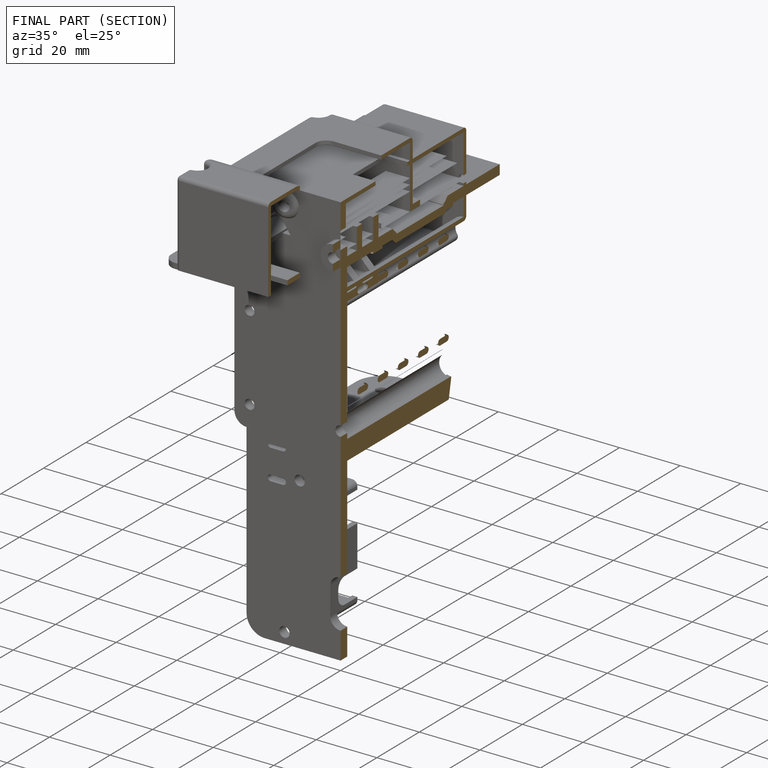
[diagram: finished part — half-section view (interior)]
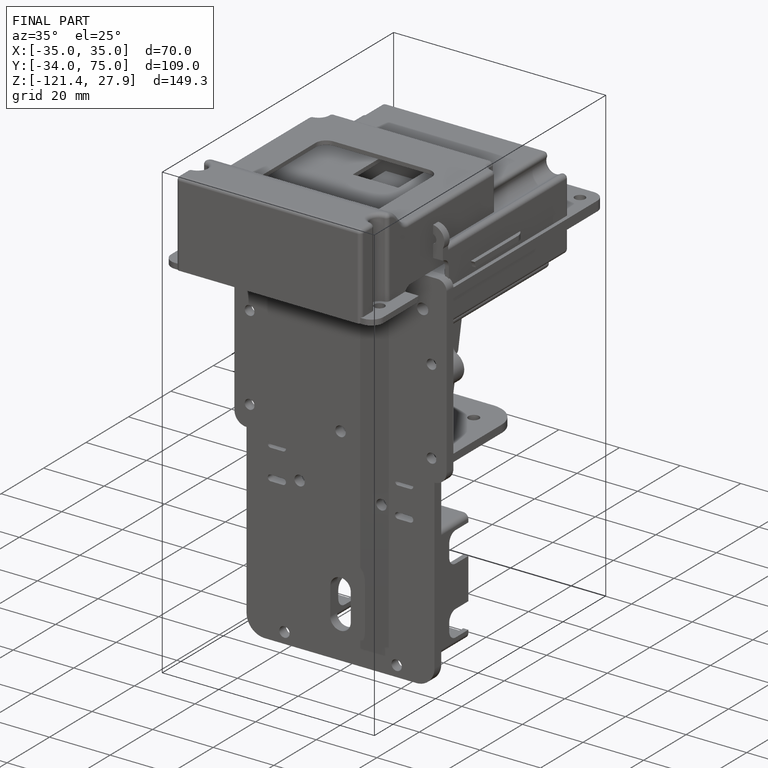
[diagram: finished part — iso view with bounding-box wireframe]
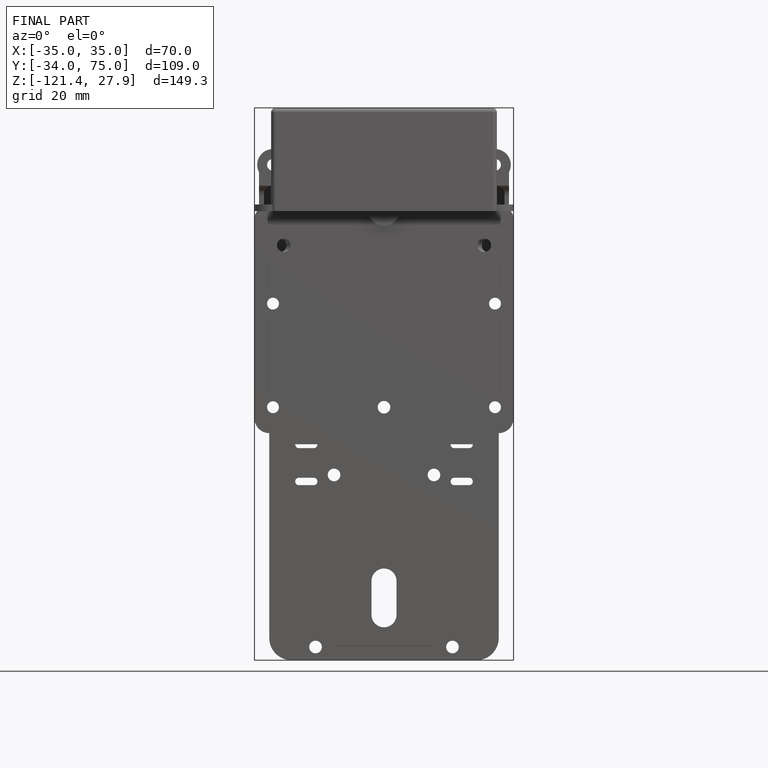
[diagram: finished part — front view with bounding-box wireframe]
